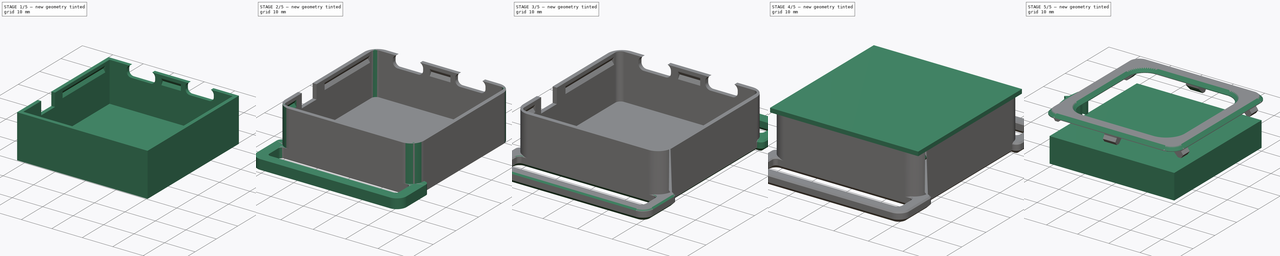
[diagram: build sequence overview — one tinted view per stage of 5, left to right]
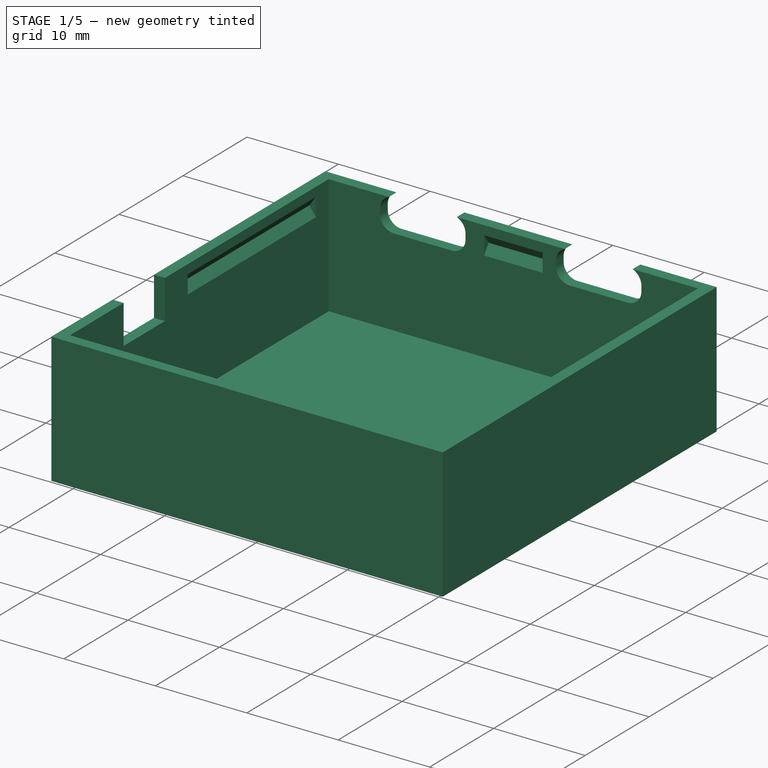
[diagram: stage 1 of 5 — iso view after this stage's code; geometry added in this stage tinted green]
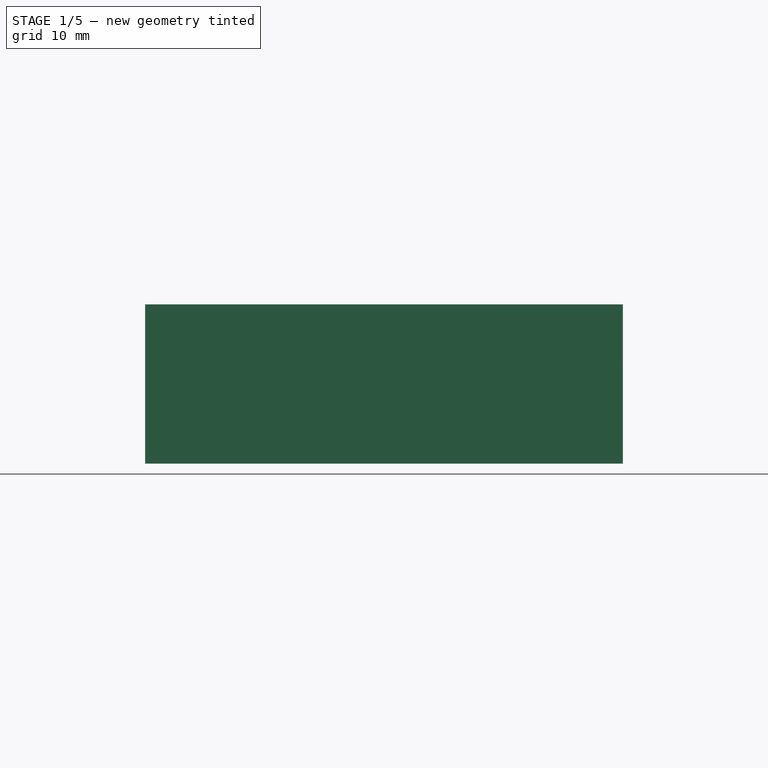
[diagram: stage 1 of 5 — front view after this stage's code; geometry added in this stage tinted green]
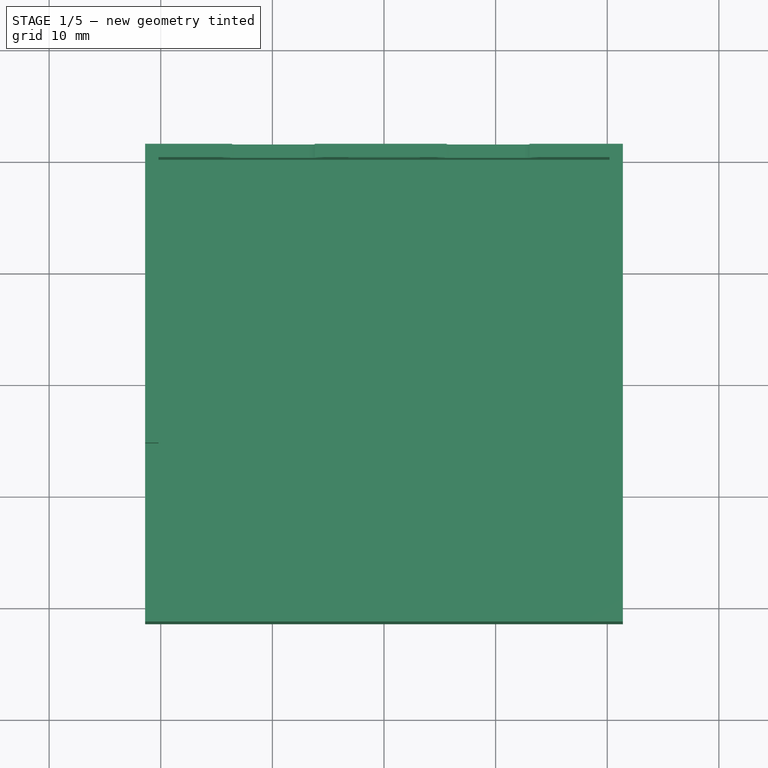
[diagram: stage 1 of 5 — top view after this stage's code; geometry added in this stage tinted green]
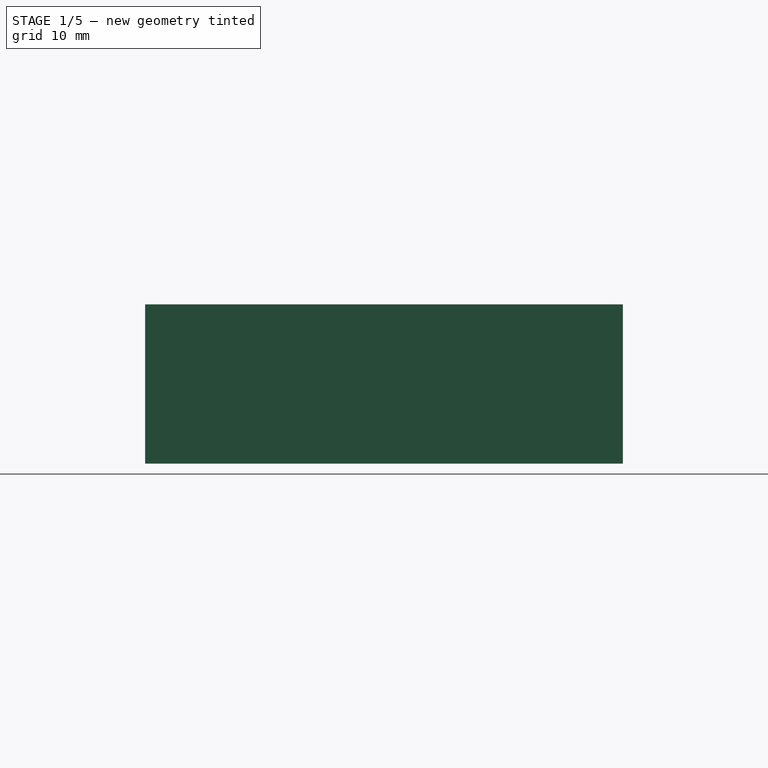
[diagram: stage 1 of 5 — right view after this stage's code; geometry added in this stage tinted green]
FCSTD DOCUMENT  (FreeCAD 2023.1231R38924 (Git))
Label: tiny-slime-case
License: All rights reserved
objects: Sketcher::SketchObject×19, PartDesign::Pad×10, PartDesign::Pocket×9, Part::Feature×8, App::Part×8, Part::SubShapeBinder×8, PartDesign::Fillet×7, PartDesign::Chamfer×6, PartDesign::Body×4, PartDesign::Mirrored×4, PartDesign::SubShapeBinder×3, App::Link×2, PartDesign::MultiTransform×1
note: 172 computed .brp shape members not serialized (recipe doc carries the construction recipe); baked Part::Feature solids carry a one-line shape summary decoded from their .brp

FEATURE [PartDesign::Body] Body  label="Battery"
  AutoGroupSolids = false
  ClaimAllChildren = false
  ExportMode = 0
  Group = -> [Sketch,Pad]
  InvalidShape = false
  Origin = -> Origin008
  Placement = pos=(0,0,1.2) rot=(0,0,1;0rad)
  Tip = -> Pad
  TreeRank = 49
  ValidateShape = false
  _ExportChildren = -> [Pad]
  _GroupVersion = 1
FEATURE [Part::SubShapeBinder] Import  label="Import(Pad)"
  BindCopyOnChange = 0
  BindMode = 0
  ClaimChildren = false
  Context = -> Body001 [Import.]
  EdgeTolerance = 1e-06
  FillStyle = 0
  Fuse = false
  InvalidShape = false
  MakeFace = false
  MergeEdges = true
  OffsetFill = false
  OffsetIntersection = false
  OffsetJoinType = 0
  OffsetOpenResult = false
  Outline = false
  PartialLoad = false
  Relative = true
  SplitEdges = false
  Support = -> [Body[Pad.]]
  TightBound = false
  TreeRank = 62
  ValidateShape = false
  _Version = 8
FEATURE [Sketcher::SketchObject] Sketch001
  ArcFitTolerance = 1e-06
  AttachmentSupport = -> [Import]
  ExternalBSplineMaxDegree = 5
  ExternalBSplineTolerance = 0.0001
  ExternalGeometry = -> [Import]
  FullyConstrained = true
  InternalTolerance = 1e-06
  InvalidShape = false
  MakeInternals = false
  MapMode = 5
  Placement = pos=(0,0,1.2) rot=(1,0,0;3.14159rad)
  Support = -> [Import]
  TreeRank = 63
  ValidateShape = false
  sketch-geometry (4):
    g0: LineSegment StartX=-21.4 StartY=21.4 StartZ=0 EndX=21.4 EndY=21.4 EndZ=0
    g1: LineSegment StartX=21.4 StartY=21.4 StartZ=0 EndX=21.4 EndY=-21.4 EndZ=0
    g2: LineSegment StartX=21.4 StartY=-21.4 StartZ=0 EndX=-21.4 EndY=-21.4 EndZ=0
    g3: LineSegment StartX=-21.4 StartY=-21.4 StartZ=0 EndX=-21.4 EndY=21.4 EndZ=0
  constraints (11):
    c: Coincident(g0,g1)
    c: Coincident(g1,g2)
    c: Coincident(g2,g3)
    c: Coincident(g3,g0)
    c: Horizontal(g0)
    c: Horizontal(g2)
    c: Vertical(g1)
    c: Vertical(g3)
    c: Symmetric(g1,g0,g-1)
    c: Equal(g1,g0)
    c: DistanceY(g-3,g0) = 1.4
FEATURE [PartDesign::Pad] Pad001
  AddSubType = 0
  AlongSketchNormal = false
  AutoTaperInnerAngle = true
  CheckUpToFaceLimits = true
  ClaimChildren = false
  Direction = (0,0,-1)
  Fit = 0
  FitJoin = 0
  InnerFit = 0
  InnerFitJoin = 0
  InvalidShape = false
  Length = 1.2
  Length2 = 10
  Linearize = true
  NewSolid = false
  Profile = -> Sketch001
  ReferenceAxis = -> Sketch001 [N_Axis]
  Suppress = false
  TaperInnerAngle = 0
  TaperInnerAngleRev = 0
  TreeRank = 64
  Type = 0
  ValidateShape = false
  _ProfileBasedVersion = 1
FEATURE [Sketcher::SketchObject] Sketch002
  ArcFitTolerance = 1e-06
  AttachmentSupport = -> [Pad001]
  ExternalBSplineMaxDegree = 5
  ExternalBSplineTolerance = 0.0001
  ExternalGeometry = -> [Pad001]
  FullyConstrained = true
  InternalTolerance = 1e-06
  InvalidShape = false
  MakeInternals = false
  MapMode = 5
  Placement = pos=(0,0,1.2) rot=(0,0,1;0rad)
  Support = -> [Pad001]
  TreeRank = 65
  ValidateShape = false
  sketch-geometry (4):
    g0: LineSegment StartX=-20.2 StartY=20.2 StartZ=0 EndX=20.2 EndY=20.2 EndZ=0
    g1: LineSegment StartX=20.2 StartY=20.2 StartZ=0 EndX=20.2 EndY=-20.2 EndZ=0
    g2: LineSegment StartX=20.2 StartY=-20.2 StartZ=0 EndX=-20.2 EndY=-20.2 EndZ=0
    g3: LineSegment StartX=-20.2 StartY=-20.2 StartZ=0 EndX=-20.2 EndY=20.2 EndZ=0
  constraints (11):
    c: Coincident(g0,g1)
    c: Coincident(g1,g2)
    c: Coincident(g2,g3)
    c: Coincident(g3,g0)
    c: Horizontal(g0)
    c: Horizontal(g2)
    c: Vertical(g1)
    c: Vertical(g3)
    c: Symmetric(g1,g0,g-1)
    c: Equal(g0,g3)
    c: DistanceY(g0,g-4) = 1.2
FEATURE [PartDesign::SubShapeBinder] Import001  label="Import001(COMPOUND)"
  BindCopyOnChange = 0
  BindMode = 0
  ClaimChildren = false
  Context = -> Body001 [Import001.]
  EdgeTolerance = 1e-06
  FillStyle = 0
  Fuse = false
  InvalidShape = false
  MakeFace = false
  MergeEdges = true
  OffsetFill = false
  OffsetIntersection = false
  OffsetJoinType = 0
  OffsetOpenResult = false
  Outline = false
  PartialLoad = false
  Relative = true
  SplitEdges = false
  Support = -> [Part007[Part.Compound.Face247]]
  TightBound = false
  TreeRank = 67
  ValidateShape = false
  _Version = 8
FEATURE [PartDesign::Pad] Pad002
  AddSubType = 0
  AlongSketchNormal = false
  AutoTaperInnerAngle = true
  BaseFeature = -> Pad001
  CheckUpToFaceLimits = true
  ClaimChildren = false
  Direction = (0,0,1)
  Fit = 0
  FitJoin = 0
  InnerFit = 0
  InnerFitJoin = 0
  InvalidShape = false
  Length = 10
  Length2 = 10
  Linearize = true
  NewSolid = false
  Offset = -0.1
  Profile = -> Sketch002
  ReferenceAxis = -> Sketch002 [N_Axis]
  Suppress = false
  TaperInnerAngle = 0
  TaperInnerAngleRev = 0
  TreeRank = 66
  Type = 3
  UpToFace = -> Import001
  ValidateShape = false
  _ProfileBasedVersion = 1
FEATURE [Part::SubShapeBinder] Import002  label="Import002(COMPOUND)"
  BindCopyOnChange = 0
  BindMode = 0
  ClaimChildren = false
  Context = -> Body001 [Import002.]
  EdgeTolerance = 1e-06
  FillStyle = 0
  Fuse = false
  InvalidShape = false
  MakeFace = false
  MergeEdges = true
  OffsetFill = false
  OffsetIntersection = false
  OffsetJoinType = 0
  OffsetOpenResult = false
  Outline = false
  PartialLoad = false
  Relative = true
  SplitEdges = false
  Support = -> [Part007[Part002.Compound001.]]
  TightBound = false
  TreeRank = 69
  ValidateShape = false
  _Version = 8
FEATURE [Part::SubShapeBinder] Import003  label="Import003(COMPOUND)"
  BindCopyOnChange = 0
  BindMode = 0
  ClaimChildren = false
  Context = -> Body001 [Import003.]
  EdgeTolerance = 1e-06
  FillStyle = 0
  Fuse = false
  InvalidShape = false
  MakeFace = false
  MergeEdges = true
  OffsetFill = false
  OffsetIntersection = false
  OffsetJoinType = 0
  OffsetOpenResult = false
  Outline = false
  PartialLoad = false
  Relative = true
  SplitEdges = false
  Support = -> [Part007[Part.Compound.]]
  TightBound = false
  TreeRank = 70
  ValidateShape = false
  _Version = 8
FEATURE [Sketcher::SketchObject] Sketch003
  ArcFitTolerance = 1e-06
  AttachmentSupport = -> [Pad002]
  ExternalBSplineMaxDegree = 5
  ExternalBSplineTolerance = 0.0001
  ExternalGeometry = -> [Import002,Import003]
  FullyConstrained = true
  InternalTolerance = 1e-06
  InvalidShape = false
  MakeInternals = false
  MapMode = 5
  Placement = pos=(0,21.4,0) rot=(0,0.707107,0.707107;3.14159rad)
  Support = -> [Pad002]
  TreeRank = 68
  ValidateShape = false
  sketch-geometry (22):
    g0: ArcOfCircle CenterX=6.7254 CenterY=12.8646 CenterZ=0 NormalX=0 NormalY=0 NormalZ=1 AngleXU=0 Radius=1.4954 StartAngle=1.5708 EndAngle=3.14159
    g1: LineSegment StartX=6.7254 StartY=14.36 StartZ=0 EndX=13.0746 EndY=14.36 EndZ=0
    g2: ArcOfCircle CenterX=13.0746 CenterY=12.8646 CenterZ=0 NormalX=0 NormalY=0 NormalZ=1 AngleXU=0 Radius=1.4954 StartAngle=0 EndAngle=1.5708
    g3: LineSegment StartX=14.57 StartY=12.8646 StartZ=0 EndX=14.57 EndY=12.2954 EndZ=0
    g4: ArcOfCircle CenterX=13.0746 CenterY=12.2954 CenterZ=0 NormalX=0 NormalY=0 NormalZ=1 AngleXU=0 Radius=1.4954 StartAngle=4.71239 EndAngle=6.28319
    g5: LineSegment StartX=13.0746 StartY=10.8 StartZ=0 EndX=6.7254 EndY=10.8 EndZ=0
    g6: ArcOfCircle CenterX=6.7254 CenterY=12.2954 CenterZ=0 NormalX=0 NormalY=0 NormalZ=1 AngleXU=0 Radius=1.4954 StartAngle=3.14159 EndAngle=4.71239
    g7: LineSegment StartX=5.23 StartY=12.2954 StartZ=0 EndX=5.23 EndY=12.8646 EndZ=0
    g8: GeomPoint [constr] X=5.23 Y=14.36 Z=0
    g9: GeomPoint [constr] X=14.57 Y=10.8 Z=0
    g10: ArcOfCircle CenterX=-12.508 CenterY=12.8646 CenterZ=0 NormalX=0 NormalY=0 NormalZ=1 AngleXU=0 Radius=1.4954 StartAngle=1.5708 EndAngle=3.14159
    g11: LineSegment StartX=-12.508 StartY=14.36 StartZ=0 EndX=-6.15878 EndY=14.36 EndZ=0
    g12: ArcOfCircle CenterX=-6.15878 CenterY=12.8646 CenterZ=0 NormalX=0 NormalY=0 NormalZ=1 AngleXU=0 Radius=1.4954 StartAngle=0 EndAngle=1.5708
    g13: LineSegment StartX=-4.66338 StartY=12.8646 StartZ=0 EndX=-4.66338 EndY=12.2954 EndZ=0
    g14: ArcOfCircle CenterX=-6.15878 CenterY=12.2954 CenterZ=0 NormalX=0 NormalY=0 NormalZ=1 AngleXU=0 Radius=1.4954 StartAngle=4.71239 EndAngle=6.28319
    g15: LineSegment StartX=-6.15878 StartY=10.8 StartZ=0 EndX=-12.508 EndY=10.8 EndZ=0
    g16: ArcOfCircle CenterX=-12.508 CenterY=12.2954 CenterZ=0 NormalX=0 NormalY=0 NormalZ=1 AngleXU=0 Radius=1.4954 StartAngle=3.14159 EndAngle=4.71239
    g17: LineSegment StartX=-14.0034 StartY=12.2954 StartZ=0 EndX=-14.0034 EndY=12.8646 EndZ=0
    g18: GeomPoint [constr] X=-14.0034 Y=14.36 Z=0
    g19: GeomPoint [constr] X=-4.66338 Y=10.8 Z=0
    g20: LineSegment [constr] StartX=-18.2334 StartY=10.9 StartZ=0 EndX=-12.508 EndY=12.2954 EndZ=0
    g21: LineSegment [constr] StartX=-6.15878 StartY=12.2954 StartZ=0 EndX=-0.433383 EndY=10.9 EndZ=0
  constraints (49):
    c: Tangent(g0,g1) = 1.5708
    c: Tangent(g1,g2) = 1.5708
    c: Tangent(g2,g3) = 1.5708
    c: Tangent(g3,g4) = 1.5708
    c: Tangent(g4,g5) = 1.5708
    c: Tangent(g5,g6) = 1.5708
    c: Tangent(g6,g7) = 1.5708
    c: Tangent(g7,g0) = 1.5708
    c: Horizontal(g1)
    c: Horizontal(g5)
    c: Vertical(g3)
    c: Vertical(g7)
    c: Equal(g4,g6)
    c: PointOnObject(g8,g1)
    c: PointOnObject(g8,g7)
    c: PointOnObject(g9,g3)
    c: PointOnObject(g9,g5)
    c: Coincident(g4,g-13)
    c: Coincident(g-11,g2)
    c: Coincident(g0,g-9)
    c: DistanceY(g-10,g0) = 0.2
    c: Tangent(g10,g11) = 1.5708
    c: Tangent(g11,g12) = 1.5708
    c: Tangent(g12,g13) = 1.5708
    c: Tangent(g13,g14) = 1.5708
    c: Tangent(g14,g15) = 1.5708
    c: Tangent(g15,g16) = 1.5708
    c: Tangent(g16,g17) = 1.5708
    c: Tangent(g17,g10) = 1.5708
    c: Horizontal(g11)
    c: Horizontal(g15)
    c: Vertical(g13)
    c: Vertical(g17)
    c: Equal(g10,g12)
    c: Equal(g12,g14)
    c: Equal(g14,g16)
    c: PointOnObject(g18,g11)
    c: PointOnObject(g18,g17)
    c: PointOnObject(g19,g13)
    c: PointOnObject(g19,g15)
    c: Equal(g12,g2)
    c: Equal(g13,g3)
    c: Equal(g1,g11)
    c: Horizontal(g14,g6)
    c: Coincident(g20,g16)
    c: Coincident(g21,g14)
    c: Coincident(g21,g-18)
    c: Equal(g21,g20)
    c: Coincident(g-19,g20)
FEATURE [Part::SubShapeBinder] Import004  label="Import004(COMPOUND)"
  BindCopyOnChange = 0
  BindMode = 0
  ClaimChildren = false
  Context = -> Body001 [Import004.]
  EdgeTolerance = 1e-06
  FillStyle = 0
  Fuse = false
  InvalidShape = false
  MakeFace = false
  MergeEdges = true
  OffsetFill = false
  OffsetIntersection = false
  OffsetJoinType = 0
  OffsetOpenResult = false
  Outline = false
  PartialLoad = false
  Relative = true
  SplitEdges = false
  Support = -> [Part007[Part004.Compound002.]]
  TightBound = false
  TreeRank = 71
  ValidateShape = false
  _Version = 8
FEATURE [PartDesign::Pocket] Pocket
  AddSubType = 1
  AlongSketchNormal = false
  AutoTaperInnerAngle = true
  BaseFeature = -> Pad002
  CheckUpToFaceLimits = true
  ClaimChildren = false
  Direction = (0,-1,2e-16)
  Fit = 0
  FitJoin = 0
  InnerFit = 0
  InnerFitJoin = 0
  InvalidShape = false
  Length = 5
  Length2 = 10
  Linearize = true
  NewSolid = false
  Profile = -> Sketch003
  ReferenceAxis = -> Sketch003 [N_Axis]
  Suppress = false
  TaperInnerAngle = 0
  TaperInnerAngleRev = 0
  TreeRank = 72
  Type = 2
  ValidateShape = false
  _ProfileBasedVersion = 1
  _Version = 1
FEATURE [Part::SubShapeBinder] Import005  label="Import005(SOLID)"
  BindCopyOnChange = 0
  BindMode = 0
  ClaimChildren = false
  Context = -> Body001 [Import005.]
  EdgeTolerance = 1e-06
  FillStyle = 0
  Fuse = false
  InvalidShape = false
  MakeFace = false
  MergeEdges = true
  OffsetFill = false
  OffsetIntersection = false
  OffsetJoinType = 0
  OffsetOpenResult = false
  Outline = false
  PartialLoad = false
  Relative = true
  SplitEdges = false
  Support = -> [Part007[Part006.Solid002.]]
  TightBound = false
  TreeRank = 74
  ValidateShape = false
  _Version = 8
FEATURE [Sketcher::SketchObject] Sketch004
  ArcFitTolerance = 1e-06
  AttachmentSupport = -> [Pocket]
  ExternalBSplineMaxDegree = 5
  ExternalBSplineTolerance = 0.0001
  ExternalGeometry = -> [Import005,Pocket]
  FullyConstrained = true
  InternalTolerance = 1e-06
  InvalidShape = false
  MakeInternals = false
  MapMode = 5
  Placement = pos=(0,-3.1e-15,14.26) rot=(0,0,1;0rad)
  Support = -> [Pocket]
  TreeRank = 73
  ValidateShape = false
  sketch-geometry (7):
    g0: LineSegment [constr] StartX=-18.2744 StartY=-7.3656 StartZ=0 EndX=-16.6844 EndY=-5.2456 EndZ=0
    g1: LineSegment [constr] StartX=-18.2744 StartY=-7.3656 StartZ=0 EndX=-18.2744 EndY=-9.8256 EndZ=0
    g2: LineSegment [constr] StartX=-18.2744 StartY=-9.8256 StartZ=0 EndX=-16.6844 EndY=-11.9456 EndZ=0
    g3: LineSegment StartX=-21.4 StartY=-5.3656 StartZ=0 EndX=-20.2 EndY=-5.3656 EndZ=0
    g4: LineSegment StartX=-20.2 StartY=-5.3656 StartZ=0 EndX=-20.2 EndY=-11.8256 EndZ=0
    g5: LineSegment StartX=-20.2 StartY=-11.8256 StartZ=0 EndX=-21.4 EndY=-11.8256 EndZ=0
    g6: LineSegment StartX=-21.4 StartY=-11.8256 StartZ=0 EndX=-21.4 EndY=-5.3656 EndZ=0
  constraints (19):
    c: Coincident(g0,g-5)
    c: Coincident(g0,g-3)
    c: Coincident(g1,g-5)
    c: Vertical(g1)
    c: Coincident(g2,g1)
    c: Coincident(g2,g-4)
    c: Equal(g2,g0)
    c: Coincident(g3,g4)
    c: Coincident(g4,g5)
    c: Coincident(g5,g6)
    c: Coincident(g6,g3)
    c: Horizontal(g3)
    c: Horizontal(g5)
    c: Vertical(g4)
    c: Vertical(g6)
    c: PointOnObject(g3,g-7)
    c: PointOnObject(g4,g-8)
    c: DistanceY(g-5,g3) = 2
    c: DistanceY(g4,g1) = 2
FEATURE [PartDesign::SubShapeBinder] Import006  label="Import006(tiny-slime PCB)"
  BindCopyOnChange = 0
  BindMode = 0
  ClaimChildren = false
  Context = -> Body001 [Import006.]
  EdgeTolerance = 1e-06
  FillStyle = 0
  Fuse = false
  InvalidShape = false
  MakeFace = false
  MergeEdges = true
  OffsetFill = false
  OffsetIntersection = false
  OffsetJoinType = 0
  OffsetOpenResult = false
  Outline = false
  PartialLoad = false
  Relative = true
  SplitEdges = false
  Support = -> [Part007[Solid003.Face5]]
  TightBound = false
  TreeRank = 76
  ValidateShape = false
  _Version = 8
FEATURE [PartDesign::Pocket] Pocket001
  AddSubType = 1
  AlongSketchNormal = false
  AutoTaperInnerAngle = true
  BaseFeature = -> Pocket
  CheckUpToFaceLimits = true
  ClaimChildren = false
  Direction = (0,2e-16,-1)
  Fit = 0
  FitJoin = 0
  InnerFit = 0
  InnerFitJoin = 0
  InvalidShape = false
  Length = 0
  Length2 = 10
  Linearize = true
  NewSolid = false
  Profile = -> Sketch004
  ReferenceAxis = -> Sketch004 [N_Axis]
  Suppress = false
  TaperInnerAngle = 0
  TaperInnerAngleRev = 0
  TreeRank = 75
  Type = 3
  UpToFace = -> Import006
  ValidateShape = false
  _ProfileBasedVersion = 1
  _Version = 1
FEATURE [PartDesign::Body] Body002  label="Switch"
  AutoGroupSolids = false
  ClaimAllChildren = false
  ExportMode = 0
  Group = -> [Import007,Sketch005,Import008,Pad003,Import009]
  InvalidShape = false
  Origin = -> Origin010
  Tip = -> Pad003
  TreeRank = 86
  ValidateShape = false
  _ExportChildren = -> [Import007,Import008,Pad003,Import009]
  _GroupVersion = 1
FEATURE [Sketcher::SketchObject] Sketch006
  ArcFitTolerance = 1e-06
  AttachmentOffset = pos=(0,0,2) rot=(0,0,1;0rad)
  AttachmentSupport = -> [Pocket001]
  ExternalBSplineMaxDegree = 5
  ExternalBSplineTolerance = 0.0001
  ExternalGeometry = -> [Pocket001]
  FullyConstrained = true
  InternalTolerance = 1e-06
  InvalidShape = false
  MakeInternals = false
  MapMode = 5
  Placement = pos=(0,18.2,4e-16) rot=(1,0,0;1.5708rad)
  Support = -> [Pocket001]
  TreeRank = 92
  ValidateShape = false
  sketch-geometry (3):
    g0: LineSegment StartX=20.2 StartY=13.26 StartZ=0 EndX=20.9002 EndY=12.26 EndZ=0
    g1: LineSegment StartX=20.9002 StartY=12.26 StartZ=0 EndX=20.2 EndY=11.26 EndZ=0
    g2: LineSegment StartX=20.2 StartY=11.26 StartZ=0 EndX=20.2 EndY=13.26 EndZ=0
  constraints (9):
    c: PointOnObject(g0,g-3)
    c: Coincident(g0,g1)
    c: PointOnObject(g1,g-3)
    c: Coincident(g1,g2)
    c: Coincident(g2,g0)
    c: Equal(g0,g1)
    c: DistanceY(g0,g-3) = 1
    c: DistanceY(g1,g0) = 2
    c: Angle(g0,g1) = 1.91986
FEATURE [PartDesign::Pocket] Pocket002
  AddSubType = 1
  AlongSketchNormal = false
  AutoTaperInnerAngle = true
  BaseFeature = -> Pocket001
  CheckUpToFaceLimits = true
  ClaimChildren = false
  Direction = (0,1,-2e-16)
  Fit = 0
  FitJoin = 0
  InnerFit = 0
  InnerFitJoin = 0
  InvalidShape = false
  Length = 0
  Length2 = 10
  Linearize = true
  NewSolid = false
  Offset = 2
  Profile = -> Sketch006
  ReferenceAxis = -> Sketch006 [N_Axis]
  Reversed = true
  Suppress = false
  TaperInnerAngle = 0
  TaperInnerAngleRev = 0
  TreeRank = 93
  Type = 3
  UpToFace = -> Pocket001 [Face16]
  ValidateShape = false
  _ProfileBasedVersion = 1
  _Version = 1
FEATURE [Sketcher::SketchObject] Sketch007
  ArcFitTolerance = 1e-06
  AttachmentOffset = pos=(0,0,17) rot=(0,0,1;0rad)
  AttachmentSupport = -> [Pocket002]
  ExternalBSplineMaxDegree = 5
  ExternalBSplineTolerance = 0.0001
  ExternalGeometry = -> [Pocket002]
  FullyConstrained = true
  InternalTolerance = 1e-06
  InvalidShape = false
  MakeInternals = false
  MapMode = 5
  Placement = pos=(-3.2,0,0) rot=(0.57735,0.57735,0.57735;2.0944rad)
  Support = -> [Pocket002]
  TreeRank = 94
  ValidateShape = false
  sketch-geometry (6):
    g0: LineSegment StartX=20.2 StartY=13.26 StartZ=0 EndX=20.9002 EndY=12.26 EndZ=0
    g1: LineSegment StartX=20.9002 StartY=12.26 StartZ=0 EndX=20.2 EndY=11.26 EndZ=0
    g2: LineSegment StartX=20.2 StartY=11.26 StartZ=0 EndX=20.2 EndY=13.26 EndZ=0
    g3: LineSegment StartX=-20.2 StartY=13.26 StartZ=0 EndX=-20.9002 EndY=12.26 EndZ=0
    g4: LineSegment StartX=-20.9002 StartY=12.26 StartZ=0 EndX=-20.2 EndY=11.26 EndZ=0
    g5: LineSegment StartX=-20.2 StartY=11.26 StartZ=0 EndX=-20.2 EndY=13.26 EndZ=0
  constraints (18):
    c: PointOnObject(g0,g-3)
    c: Coincident(g0,g1)
    c: PointOnObject(g1,g-3)
    c: Coincident(g1,g2)
    c: Coincident(g2,g0)
    c: Equal(g0,g1)
    c: Angle(g0,g1) = 1.91986
    c: DistanceY(g1,g0) = 2
    c: DistanceY(g0,g-3) = 1
    c: PointOnObject(g3,g-4)
    c: Coincident(g3,g4)
    c: PointOnObject(g4,g-4)
    c: Coincident(g4,g5)
    c: Coincident(g5,g3)
    c: Equal(g3,g4)
    c: DistanceY(g5,g5) = 2
    c: DistanceY(g3,g-4) = 1
    c: Angle(g4,g3) = 1.91986
FEATURE [PartDesign::Pocket] Pocket003
  AddSubType = 1
  AlongSketchNormal = false
  AutoTaperInnerAngle = true
  BaseFeature = -> Pocket002
  CheckUpToFaceLimits = true
  ClaimChildren = false
  Direction = (-1,0,0)
  Fit = 0
  FitJoin = 0
  InnerFit = 0
  InnerFitJoin = 0
  InvalidShape = false
  Length = 0
  Length2 = 10
  Linearize = true
  NewSolid = false
  Offset = 17
  Profile = -> Sketch007
  ReferenceAxis = -> Sketch007 [N_Axis]
  Reversed = true
  Suppress = false
  TaperInnerAngle = 0
  TaperInnerAngleRev = 0
  TreeRank = 95
  Type = 3
  UpToFace = -> Pocket002 [Face17]
  ValidateShape = false
  _ProfileBasedVersion = 1
  _Version = 1
FEATURE [Sketcher::SketchObject] Sketch008
  ArcFitTolerance = 1e-06
  AttachmentOffset = pos=(0,0,2) rot=(0,0,1;0rad)
  AttachmentSupport = -> [Pocket003]
  ExternalBSplineMaxDegree = 5
  ExternalBSplineTolerance = 0.0001
  ExternalGeometry = -> [Pocket003]
  FullyConstrained = true
  InternalTolerance = 1e-06
  InvalidShape = false
  MakeInternals = false
  MapMode = 5
  Placement = pos=(0,18.2,4e-16) rot=(1,0,0;1.5708rad)
  Support = -> [Pocket003]
  TreeRank = 96
  ValidateShape = false
  sketch-geometry (3):
    g0: LineSegment StartX=-20.2 StartY=13.26 StartZ=0 EndX=-20.9002 EndY=12.26 EndZ=0
    g1: LineSegment StartX=-20.9002 StartY=12.26 StartZ=0 EndX=-20.2 EndY=11.26 EndZ=0
    g2: LineSegment StartX=-20.2 StartY=11.26 StartZ=0 EndX=-20.2 EndY=13.26 EndZ=0
  constraints (9):
    c: PointOnObject(g0,g-3)
    c: Coincident(g0,g1)
    c: PointOnObject(g1,g-3)
    c: Coincident(g1,g2)
    c: Coincident(g2,g0)
    c: Equal(g0,g1)
    c: Angle(g1,g0) = 1.91986
    c: DistanceY(g0,g-3) = 1
    c: DistanceY(g2,g2) = 2
FEATURE [PartDesign::Pocket] Pocket004
  AddSubType = 1
  AlongSketchNormal = false
  AutoTaperInnerAngle = true
  BaseFeature = -> Pocket003
  CheckUpToFaceLimits = true
  ClaimChildren = false
  Direction = (0,1,-2e-16)
  Fit = 0
  FitJoin = 0
  InnerFit = 0
  InnerFitJoin = 0
  InvalidShape = false
  Length = 20
  Length2 = 10
  Linearize = true
  NewSolid = false
  Profile = -> Sketch008
  ReferenceAxis = -> Sketch008 [N_Axis]
  Reversed = true
  Suppress = false
  TaperInnerAngle = 0
  TaperInnerAngleRev = 0
  TreeRank = 97
  Type = 0
  ValidateShape = false
  _ProfileBasedVersion = 1
  _Version = 1
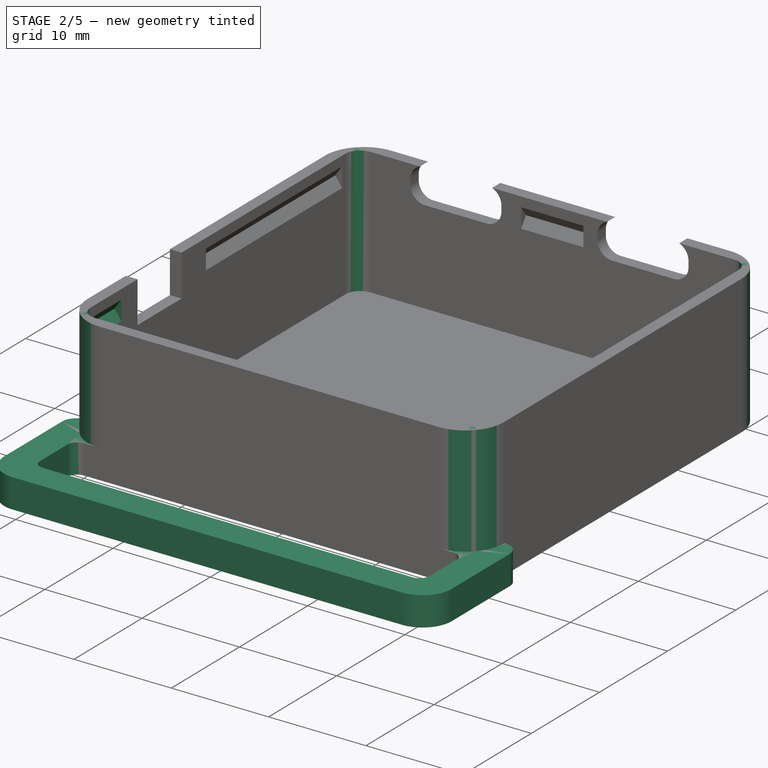
[diagram: stage 2 of 5 — iso view after this stage's code; geometry added in this stage tinted green]
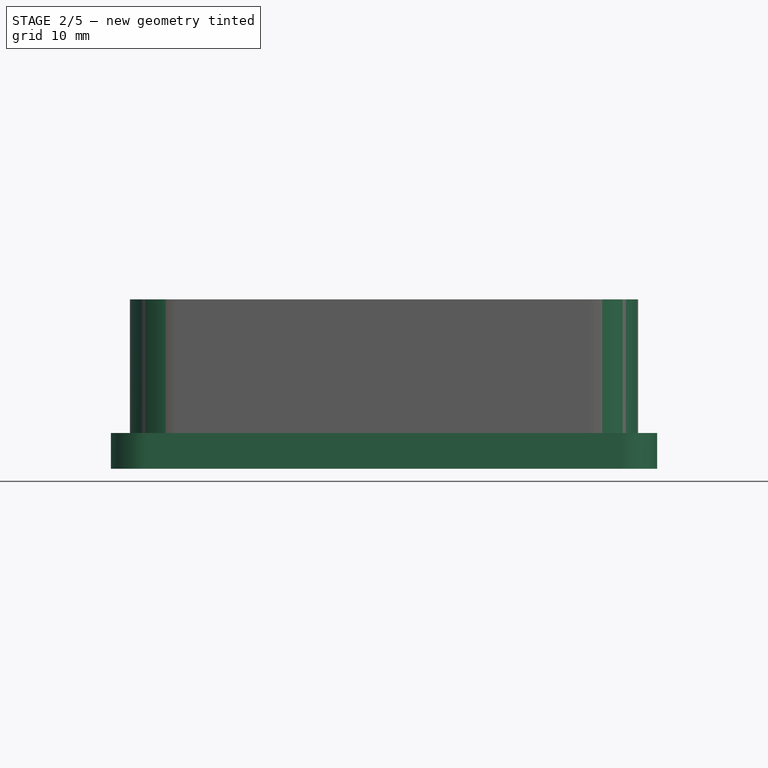
[diagram: stage 2 of 5 — front view after this stage's code; geometry added in this stage tinted green]
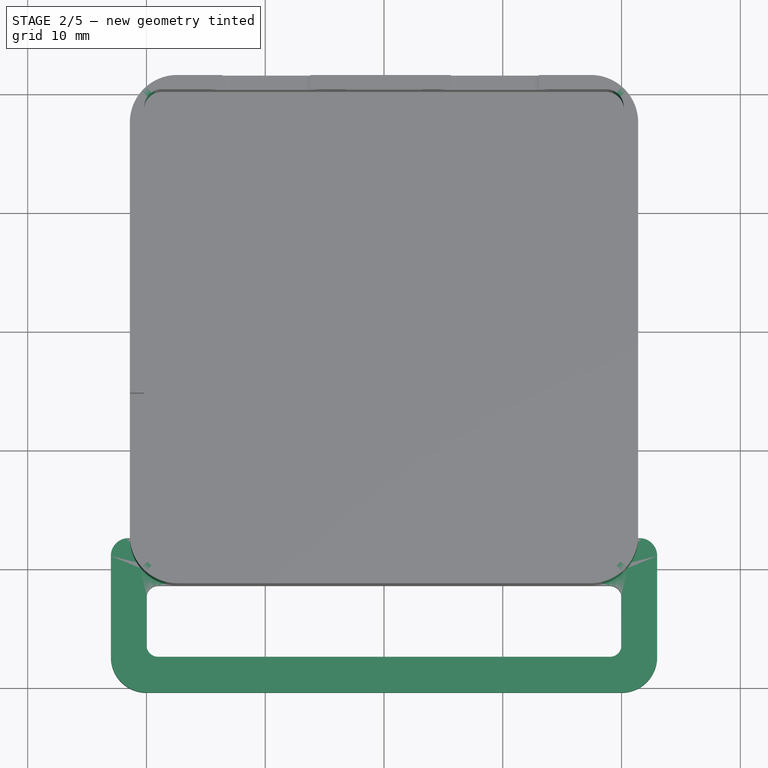
[diagram: stage 2 of 5 — top view after this stage's code; geometry added in this stage tinted green]
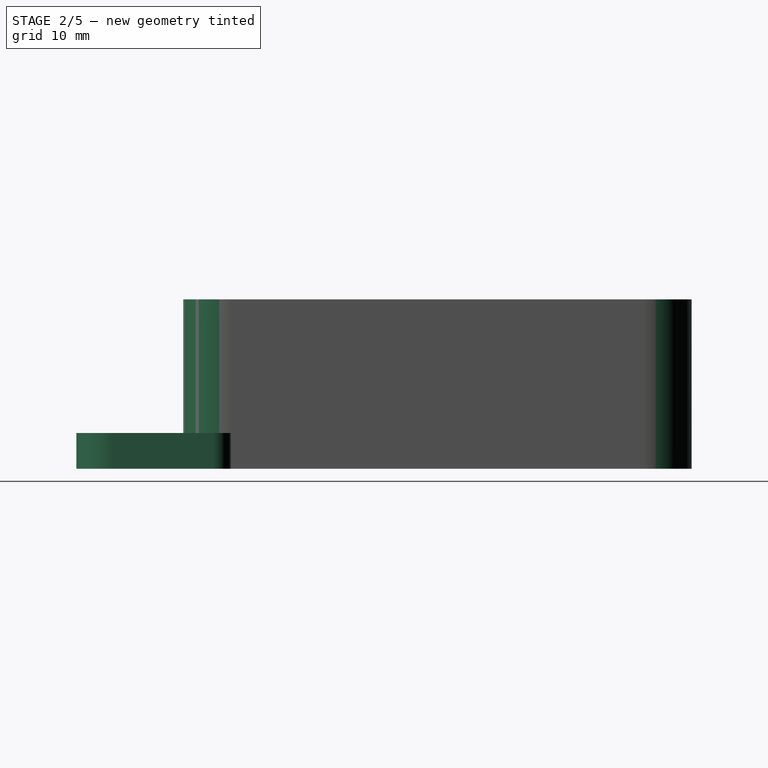
[diagram: stage 2 of 5 — right view after this stage's code; geometry added in this stage tinted green]
FEATURE [Sketcher::SketchObject] Sketch009
  ArcFitTolerance = 1e-06
  AttachmentOffset = pos=(0,0,2) rot=(0,0,1;0rad)
  AttachmentSupport = -> [Pocket004]
  ExternalBSplineMaxDegree = 5
  ExternalBSplineTolerance = 0.0001
  ExternalGeometry = -> [Pocket004]
  FullyConstrained = true
  InternalTolerance = 1e-06
  InvalidShape = false
  MakeInternals = false
  MapMode = 5
  Placement = pos=(0,-18.2,-4e-16) rot=(0,0.707107,0.707107;3.14159rad)
  Support = -> [Pocket004]
  TreeRank = 98
  ValidateShape = false
  sketch-geometry (3):
    g0: LineSegment StartX=20.2 StartY=13.26 StartZ=0 EndX=20.9002 EndY=12.26 EndZ=0
    g1: LineSegment StartX=20.9002 StartY=12.26 StartZ=0 EndX=20.2 EndY=11.26 EndZ=0
    g2: LineSegment StartX=20.2 StartY=11.26 StartZ=0 EndX=20.2 EndY=13.26 EndZ=0
  constraints (9):
    c: PointOnObject(g0,g-3)
    c: Coincident(g0,g1)
    c: PointOnObject(g1,g-3)
    c: Coincident(g1,g2)
    c: Coincident(g2,g0)
    c: Equal(g1,g0)
    c: DistanceY(g2,g2) = 2
    c: DistanceY(g0,g-3) = 1
    c: Angle(g0,g1) = 1.91986
FEATURE [PartDesign::Pocket] Pocket005
  AddSubType = 1
  AlongSketchNormal = false
  AutoTaperInnerAngle = true
  BaseFeature = -> Pocket004
  CheckUpToFaceLimits = true
  ClaimChildren = false
  Direction = (0,-1,2e-16)
  Fit = 0
  FitJoin = 0
  InnerFit = 0
  InnerFitJoin = 0
  InvalidShape = false
  Length = 4
  Length2 = 10
  Linearize = true
  NewSolid = false
  Profile = -> Sketch009
  ReferenceAxis = -> Sketch009 [N_Axis]
  Reversed = true
  Suppress = false
  TaperInnerAngle = 0
  TaperInnerAngleRev = 0
  TreeRank = 99
  Type = 0
  ValidateShape = false
  _ProfileBasedVersion = 1
  _Version = 1
FEATURE [PartDesign::Fillet] Fillet001
  AddSubType = 0
  Base = -> Pocket005 [Edge57,Edge58,Edge74,Edge68]
  BaseFeature = -> Pocket005
  InvalidShape = false
  NewSolid = false
  Radius = 1.5
  SupportTransform = false
  Suppress = false
  TreeRank = 126
  UseAllEdges = false
  ValidateShape = true
FEATURE [PartDesign::Fillet] Fillet002
  AddSubType = 0
  Base = -> Fillet001 [Edge40,Edge44,Edge56,Edge48]
  BaseFeature = -> Fillet001
  InvalidShape = false
  NewSolid = false
  Radius = 4
  SupportTransform = false
  Suppress = false
  TreeRank = 127
  UseAllEdges = false
  ValidateShape = true
FEATURE [Sketcher::SketchObject] Sketch015
  ArcFitTolerance = 1e-06
  AttachmentSupport = -> [Fillet002]
  ExternalBSplineMaxDegree = 5
  ExternalBSplineTolerance = 0.0001
  ExternalGeometry = -> [Fillet002]
  FullyConstrained = true
  InternalTolerance = 1e-06
  InvalidShape = false
  MakeInternals = false
  MapMode = 5
  Placement = pos=(0,0,0) rot=(1,0,0;3.14159rad)
  Support = -> [Fillet002]
  TreeRank = 128
  ValidateShape = false
  sketch-geometry (12):
    g0: LineSegment StartX=-20 StartY=21.4 StartZ=0 EndX=20 EndY=21.4 EndZ=0
    g1: LineSegment StartX=20 StartY=21.4 StartZ=0 EndX=20 EndY=27.4 EndZ=0
    g2: LineSegment StartX=20 StartY=27.4 StartZ=0 EndX=-20 EndY=27.4 EndZ=0
    g3: LineSegment StartX=-20 StartY=27.4 StartZ=0 EndX=-20 EndY=21.4 EndZ=0
    g4: LineSegment StartX=17.4 StartY=21.3 StartZ=0 EndX=-17.4 EndY=21.3 EndZ=0
    g5: ArcOfCircle CenterX=17.4 CenterY=17.4 CenterZ=0 NormalX=0 NormalY=0 NormalZ=1 AngleXU=0 Radius=3.9 StartAngle=0 EndAngle=1.5708
    g6: ArcOfCircle CenterX=-17.4 CenterY=17.4 CenterZ=0 NormalX=0 NormalY=0 NormalZ=1 AngleXU=0 Radius=3.9 StartAngle=1.5708 EndAngle=3.14159
    g7: LineSegment StartX=-21.3 StartY=17.4 StartZ=0 EndX=-23 EndY=17.4 EndZ=0
    g8: LineSegment StartX=-23 StartY=17.4 StartZ=0 EndX=-23 EndY=30.4 EndZ=0
    g9: LineSegment StartX=-23 StartY=30.4 StartZ=0 EndX=23 EndY=30.4 EndZ=0
    g10: LineSegment StartX=23 StartY=30.4 StartZ=0 EndX=23 EndY=17.4 EndZ=0
    g11: LineSegment StartX=21.3 StartY=17.4 StartZ=0 EndX=23 EndY=17.4 EndZ=0
  constraints (35):
    c: Coincident(g0,g1)
    c: Coincident(g1,g2)
    c: Coincident(g2,g3)
    c: Coincident(g3,g0)
    c: Horizontal(g0)
    c: Vertical(g1)
    c: Vertical(g3)
    c: DistanceY(g1,g1) = 6
    c: DistanceX(g2,g2) = 40
    c: Symmetric(g1,g2,g-2)
    c: PointOnObject(g-4,g0)
    c: Horizontal(g4)
    c: DistanceY(g4,g-4) = 0.1
    c: Vertical(g4,g-4)
    c: Vertical(g4,g-5)
    c: Coincident(g5,g-5)
    c: Coincident(g5,g4)
    c: Horizontal(g5,g-5)
    c: Coincident(g6,g-3)
    c: Coincident(g6,g4)
    c: Horizontal(g6,g-3)
    c: Coincident(g7,g6)
    c: Horizontal(g7)
    c: DistanceX(g7,g0) = 3
    c: Coincident(g8,g7)
    c: Vertical(g8)
    c: DistanceY(g2,g8) = 3
    c: Coincident(g9,g8)
    c: Horizontal(g9)
    c: DistanceX(g1,g9) = 3
    c: Coincident(g10,g9)
    c: Vertical(g10)
    c: Coincident(g11,g5)
    c: Coincident(g11,g10)
    c: Horizontal(g11)
FEATURE [PartDesign::Pad] Pad009
  AddSubType = 0
  AlongSketchNormal = false
  AutoTaperInnerAngle = true
  BaseFeature = -> Fillet002
  CheckUpToFaceLimits = true
  ClaimChildren = false
  Direction = (0,0,-1)
  Fit = 0
  FitJoin = 0
  InnerFit = 0
  InnerFitJoin = 0
  InvalidShape = false
  Length = 3
  Length2 = 10
  Linearize = true
  NewSolid = false
  Profile = -> Sketch015
  ReferenceAxis = -> Sketch015 [N_Axis]
  Refine = true
  Reversed = true
  Suppress = false
  TaperInnerAngle = 0
  TaperInnerAngleRev = 0
  TreeRank = 129
  Type = 0
  ValidateShape = true
  _ProfileBasedVersion = 1
FEATURE [PartDesign::Fillet] Fillet003
  AddSubType = 0
  Base = -> Pad009 [Edge122,Edge2]
  BaseFeature = -> Pad009
  InvalidShape = false
  NewSolid = false
  Radius = 1.5
  SupportTransform = false
  Suppress = false
  TreeRank = 130
  UseAllEdges = false
  ValidateShape = true
FEATURE [PartDesign::Fillet] Fillet004
  AddSubType = 0
  Base = -> Fillet003 [Edge77,Edge79,Edge78,Edge80]
  BaseFeature = -> Fillet003
  InvalidShape = false
  NewSolid = false
  Radius = 1
  SupportTransform = false
  Suppress = false
  TreeRank = 131
  UseAllEdges = false
  ValidateShape = true
FEATURE [PartDesign::Fillet] Fillet005
  AddSubType = 0
  Base = -> Fillet004 [Edge50,Edge54]
  BaseFeature = -> Fillet004
  InvalidShape = false
  NewSolid = false
  Radius = 3
  SupportTransform = false
  Suppress = false
  TreeRank = 132
  UseAllEdges = false
  ValidateShape = true
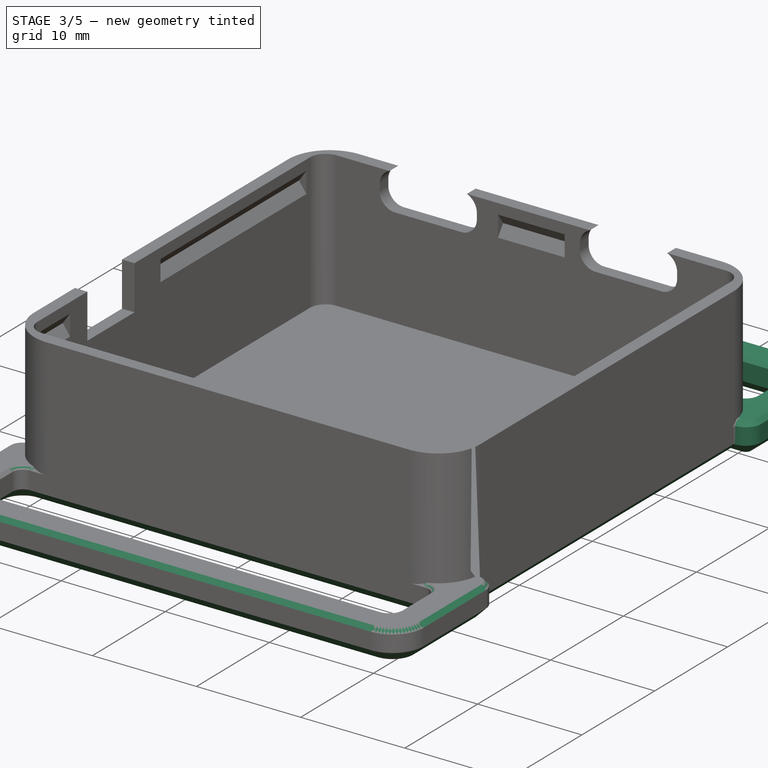
[diagram: stage 3 of 5 — iso view after this stage's code; geometry added in this stage tinted green]
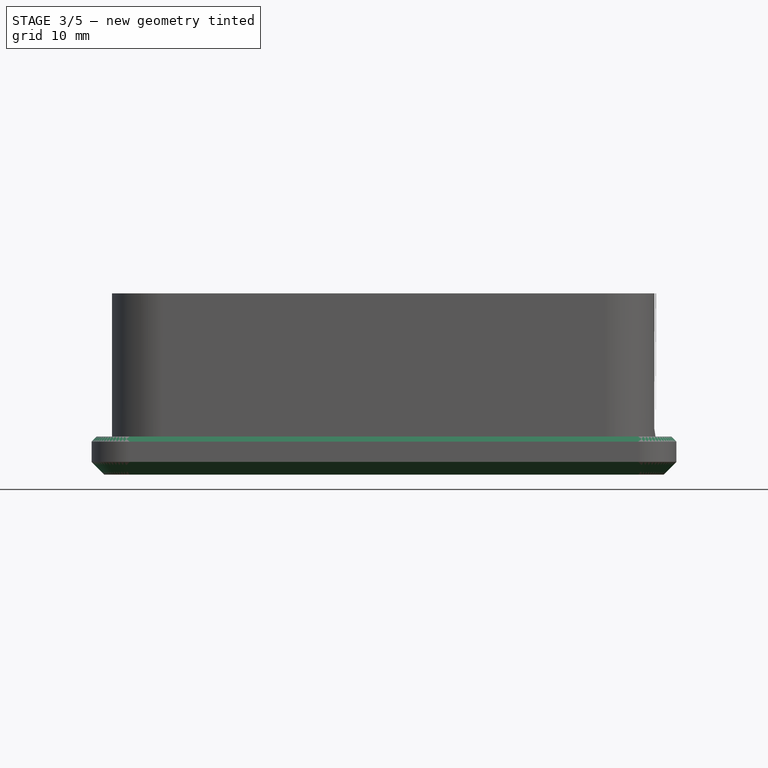
[diagram: stage 3 of 5 — front view after this stage's code; geometry added in this stage tinted green]
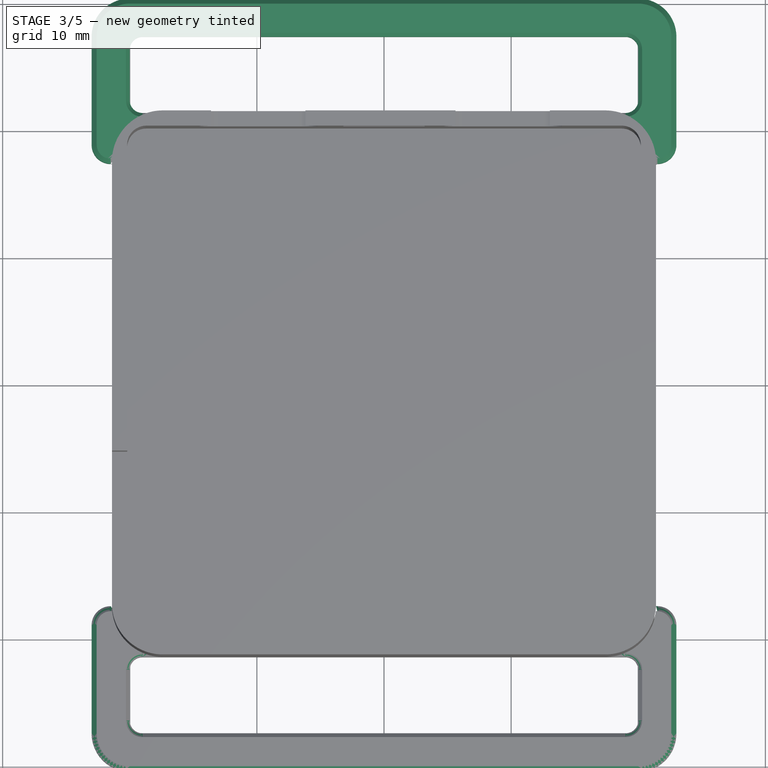
[diagram: stage 3 of 5 — top view after this stage's code; geometry added in this stage tinted green]
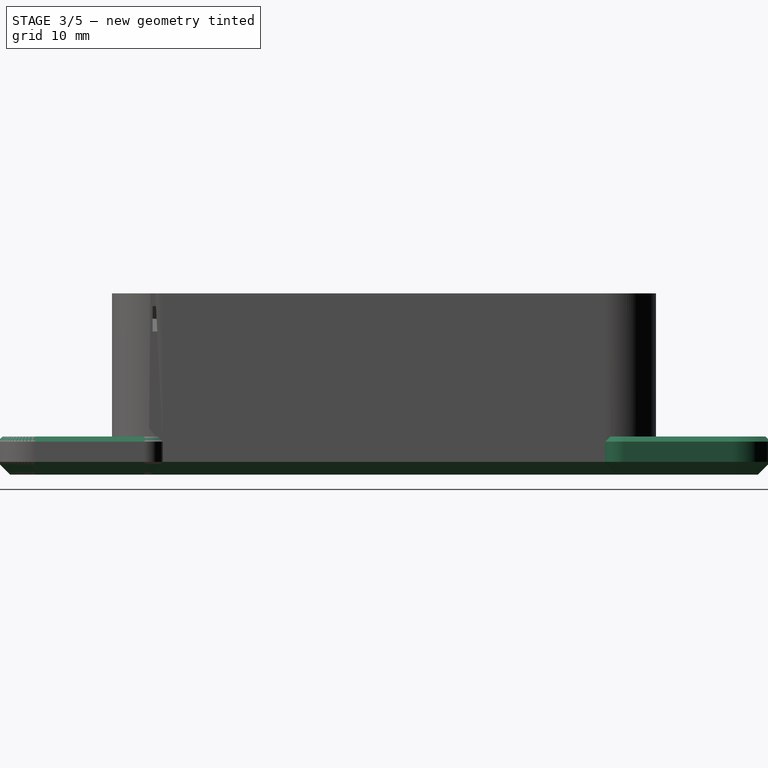
[diagram: stage 3 of 5 — right view after this stage's code; geometry added in this stage tinted green]
FEATURE [PartDesign::Mirrored] Mirrored003
  AddSubType = 0
  BaseFeature = -> Fillet005
  CopyShape = false
  InvalidShape = false
  MirrorPlane = -> Sketch015 [H_Axis]
  NewSolid = false
  OriginalSubs = -> [Pad009,Fillet003,Fillet004,Fillet005]
  Originals = -> [Pad009,Fillet003,Fillet004,Fillet005]
  ParallelTransform = true
  Refine = true
  SubTransform = true
  Suppress = false
  TreeRank = 133
  ValidateShape = true
  _Version = 3
FEATURE [PartDesign::Chamfer] Chamfer
  AddSubType = 0
  Angle = 45
  Base = -> Mirrored003 [Edge11,Edge73,Edge8,Edge21]
  BaseFeature = -> Mirrored003
  ChamferType = 0
  FlipDirection = false
  InvalidShape = false
  NewSolid = false
  Size = 1
  Size2 = 1
  SupportTransform = false
  Suppress = false
  TreeRank = 134
  UseAllEdges = false
  ValidateShape = true
FEATURE [PartDesign::Chamfer] Chamfer001
  AddSubType = 0
  Angle = 45
  Base = -> Chamfer [Edge130,Edge28]
  BaseFeature = -> Chamfer
  ChamferType = 0
  FlipDirection = false
  InvalidShape = false
  NewSolid = false
  Size = 0.3
  Size2 = 1
  SupportTransform = false
  Suppress = false
  TreeRank = 135
  UseAllEdges = false
  ValidateShape = true
FEATURE [PartDesign::Body] Body003  label="Top"
  AutoGroupSolids = false
  ClaimAllChildren = false
  ExportMode = 0
  Group = -> [Import010,Sketch010,Pad004,Sketch011,Pad005,Sketch012,Pad006,MultiTransform,Mirrored,Mirrored001,Sketch013,Pad007,Sketch014,Pad008,Mirrored002,Fillet,Fillet006,Sketch016,Pocket006,Chamfer003,Chamfer004]
  InvalidShape = false
  Origin = -> Origin011
  Tip = -> Chamfer004
  TreeRank = 109
  ValidateShape = false
  _ExportChildren = -> [Import010,Pad004,Pad005,Pad006,MultiTransform,Pad007,Pad008,Mirrored002,Fillet,Fillet006,Pocket006,Chamfer003,Chamfer004]
  _GroupVersion = 1
FEATURE [PartDesign::Chamfer] Chamfer005
  AddSubType = 0
  Angle = 45
  Base = -> Chamfer001 [Edge259,Edge15]
  BaseFeature = -> Chamfer001
  ChamferType = 0
  FlipDirection = false
  InvalidShape = false
  NewSolid = false
  Size = 0.4
  Size2 = 1
  SupportTransform = false
  Suppress = false
  TreeRank = 146
  UseAllEdges = false
  ValidateShape = true
FEATURE [PartDesign::Chamfer] Chamfer002
  AddSubType = 0
  Angle = 45
  Base = -> Chamfer005 [Edge167,Edge108]
  BaseFeature = -> Chamfer005
  ChamferType = 0
  FlipDirection = false
  InvalidShape = false
  NewSolid = false
  Size = 1
  Size2 = 1
  SupportTransform = false
  Suppress = false
  TreeRank = 136
  UseAllEdges = false
  ValidateShape = true
FEATURE [Sketcher::SketchObject] Sketch017
  ArcFitTolerance = 1e-06
  AttachmentSupport = -> [Chamfer002]
  ExternalBSplineMaxDegree = 5
  ExternalBSplineTolerance = 0.0001
  ExternalGeometry = -> [Chamfer002]
  FullyConstrained = true
  InternalTolerance = 1e-06
  InvalidShape = false
  MakeInternals = false
  MapMode = 5
  Placement = pos=(0,21.4,-2.4e-15) rot=(0,0.707107,0.707107;3.14159rad)
  Support = -> [Chamfer002]
  TreeRank = 142
  ValidateShape = false
  sketch-geometry (8):
    g0: LineSegment StartX=7.9 StartY=6.55 StartZ=0 EndX=9.9 EndY=9.8 EndZ=0
    g1: LineSegment StartX=9.9 StartY=9.8 StartZ=0 EndX=9.9 EndY=7.55 EndZ=0
    g2: LineSegment StartX=9.9 StartY=7.55 StartZ=0 EndX=11.4 EndY=7.55 EndZ=0
    g3: LineSegment StartX=11.4 StartY=7.55 StartZ=0 EndX=9.4 EndY=4.3 EndZ=0
    g4: LineSegment StartX=9.4 StartY=4.3 StartZ=0 EndX=9.4 EndY=6.55 EndZ=0
    g5: LineSegment StartX=9.4 StartY=6.55 StartZ=0 EndX=7.9 EndY=6.55 EndZ=0
    g6: LineSegment [constr] StartX=6.7254 StartY=10.8 StartZ=0 EndX=9.9 EndY=9.8 EndZ=0
    g7: LineSegment [constr] StartX=9.9 StartY=9.8 StartZ=0 EndX=13.0746 EndY=10.8 EndZ=0
  constraints (22):
    c: Coincident(g0,g1)
    c: Vertical(g1)
    c: Coincident(g1,g2)
    c: Horizontal(g2)
    c: Coincident(g2,g3)
    c: Coincident(g3,g4)
    c: Vertical(g4)
    c: Coincident(g4,g5)
    c: Horizontal(g5)
    c: Coincident(g0,g5)
    c: Parallel(g3,g0)
    c: Equal(g4,g1)
    c: DistanceX(g5,g5) = 1.5
    c: DistanceY(g3,g0) = 5.5
    c: DistanceX(g0,g2) = 3.5
    c: Coincident(g6,g-3)
    c: Coincident(g6,g0)
    c: Coincident(g7,g0)
    c: Coincident(g7,g-3)
    c: Equal(g7,g6)
    c: DistanceY(g0,g-3) = 1
    c: DistanceY(g4,g1) = 1
FEATURE [PartDesign::Pocket] Pocket007
  AddSubType = 1
  AlongSketchNormal = false
  AutoTaperInnerAngle = true
  BaseFeature = -> Chamfer002
  CheckUpToFaceLimits = true
  ClaimChildren = false
  Direction = (0,-1,2e-16)
  Fit = 0
  FitJoin = 0
  InnerFit = 0
  InnerFitJoin = 0
  InvalidShape = true
  Length = 0.6
  Length2 = 10
  Linearize = true
  NewSolid = false
  Profile = -> Sketch017
  ReferenceAxis = -> Sketch017 [N_Axis]
  Suppress = false
  TaperInnerAngle = 0
  TaperInnerAngleRev = 0
  TreeRank = 143
  Type = 0
  ValidateShape = true
  _ProfileBasedVersion = 1
  _Version = 1
FEATURE [Sketcher::SketchObject] Sketch018
  ArcFitTolerance = 1e-06
  AttachmentSupport = -> [Pocket007]
  ExternalBSplineMaxDegree = 5
  ExternalBSplineTolerance = 0.0001
  ExternalGeometry = -> [Pocket007]
  FullyConstrained = true
  InternalTolerance = 1e-06
  InvalidShape = false
  MakeInternals = false
  MapMode = 5
  Placement = pos=(-21.4,-8e-16,0) rot=(0.57735,-0.57735,-0.57735;2.0944rad)
  Support = -> [Pocket007]
  TreeRank = 144
  ValidateShape = false
  sketch-geometry (10):
    g0: Circle CenterX=14.8256 CenterY=7.05 CenterZ=0 NormalX=0 NormalY=0 NormalZ=1 AngleXU=0 Radius=1.5
    g1: LineSegment StartX=1.8656 StartY=8.55 StartZ=0 EndX=2.8656 EndY=8.55 EndZ=0
    g2: LineSegment StartX=2.8656 StartY=8.55 StartZ=0 EndX=2.8656 EndY=5.55 EndZ=0
    g3: LineSegment StartX=2.8656 StartY=5.55 StartZ=0 EndX=1.8656 EndY=5.55 EndZ=0
    g4: LineSegment StartX=1.8656 StartY=5.55 StartZ=0 EndX=1.8656 EndY=8.55 EndZ=0
    g5: GeomPoint [constr] X=2.3656 Y=7.05 Z=0
    g6: LineSegment [constr] StartX=2.3656 StartY=7.05 StartZ=0 EndX=5.3656 EndY=14.26 EndZ=0
    g7: LineSegment [constr] StartX=11.8256 StartY=14.26 StartZ=0 EndX=14.8256 EndY=7.05 EndZ=0
    g8: LineSegment [constr] StartX=-21.4 StartY=9.8 StartZ=0 EndX=2.3656 EndY=7.05 EndZ=0
    g9: LineSegment [constr] StartX=2.3656 StartY=7.05 StartZ=0 EndX=-21.4 EndY=4.3 EndZ=0
  constraints (24):
    c: Coincident(g1,g2)
    c: Coincident(g2,g3)
    c: Coincident(g3,g4)
    c: Coincident(g4,g1)
    c: Horizontal(g1)
    c: Horizontal(g3)
    c: Vertical(g2)
    c: Vertical(g4)
    c: Diameter(g0) = 3
    c: DistanceY(g2,g2) = 3
    c: DistanceX(g1,g1) = 1
    c: Symmetric(g1,g2,g5)
    c: Horizontal(g5,g0)
    c: Coincident(g6,g5)
    c: Coincident(g6,g-3)
    c: Coincident(g7,g-4)
    c: Coincident(g7,g0)
    c: Equal(g7,g6)
    c: DistanceX(g-4,g0) = 3
    c: Coincident(g8,g-5)
    c: Coincident(g8,g5)
    c: Coincident(g9,g5)
    c: Coincident(g9,g-6)
    c: Equal(g8,g9)
FEATURE [PartDesign::Pocket] Pocket008
  AddSubType = 1
  AlongSketchNormal = false
  AutoTaperInnerAngle = true
  BaseFeature = -> Pocket007
  CheckUpToFaceLimits = true
  ClaimChildren = false
  Direction = (1,0,0)
  Fit = 0
  FitJoin = 0
  InnerFit = 0
  InnerFitJoin = 0
  InvalidShape = true
  Length = 0.6
  Length2 = 10
  Linearize = true
  NewSolid = false
  Profile = -> Sketch018
  ReferenceAxis = -> Sketch018 [N_Axis]
  Suppress = false
  TaperInnerAngle = 0
  TaperInnerAngleRev = 0
  TreeRank = 145
  Type = 0
  ValidateShape = true
  _ProfileBasedVersion = 1
  _Version = 1
FEATURE [PartDesign::Body] Body001  label="Bottom"
  AutoGroupSolids = false
  ClaimAllChildren = false
  ExportMode = 0
  Group = -> [Import,Sketch001,Pad001,Sketch002,Pad002,Import001,Sketch003,Import002,Import003,Import004,Pocket,Sketch004,Import005,Pocket001,Import006,Sketch006,Pocket002,Sketch007,Pocket003,Sketch008,Pocket004,Sketch009,Pocket005,Fillet001,Fillet002,Sketch015,Pad009,Fillet003,Fillet004,Fillet005,Mirrored003,Chamfer,Chamfer001,Chamfer005,Chamfer002,Sketch017,Pocket007,Sketch018,Pocket008]
  InvalidShape = false
  Origin = -> Origin009
  Tip = -> Pocket008
  TreeRank = 61
  ValidateShape = false
  _ExportChildren = -> [Import,Pad001,Pad002,Import001,Import002,Import003,Import004,Pocket,Import005,Pocket001,Import006,Pocket002,Pocket003,Pocket004,Pocket005,Fillet001,Fillet002,Pad009,Fillet003,Fillet004,Fillet005,Mirrored003,Chamfer,Chamfer001,Chamfer005,Chamfer002,Pocket007,Pocket008]
  _GroupVersion = 1
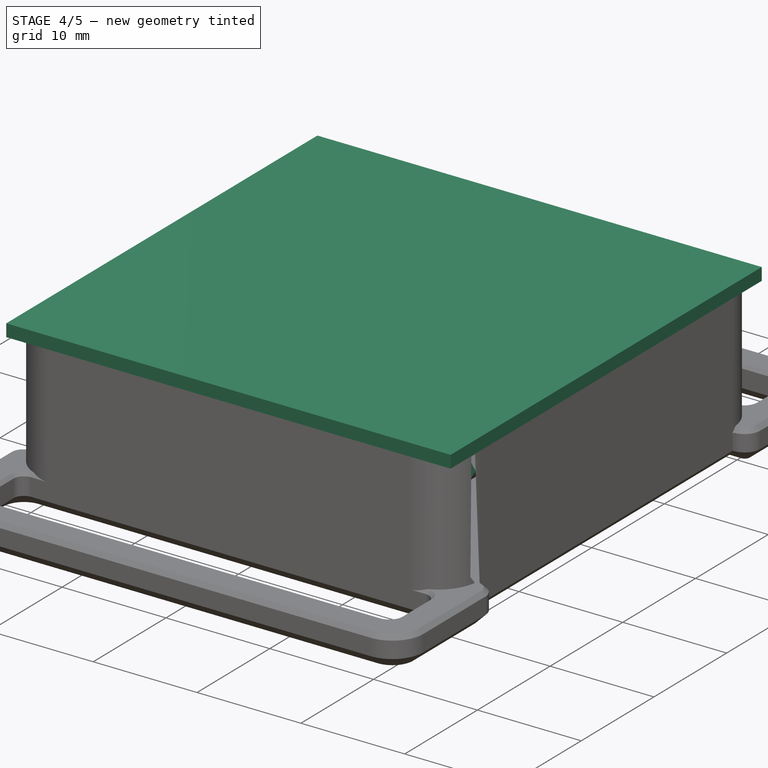
[diagram: stage 4 of 5 — iso view after this stage's code; geometry added in this stage tinted green]
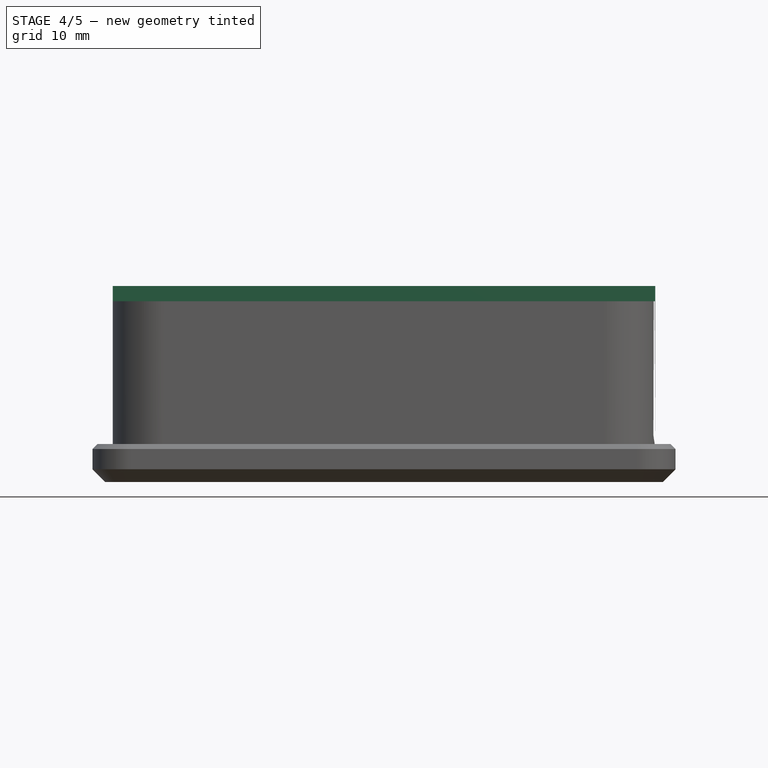
[diagram: stage 4 of 5 — front view after this stage's code; geometry added in this stage tinted green]
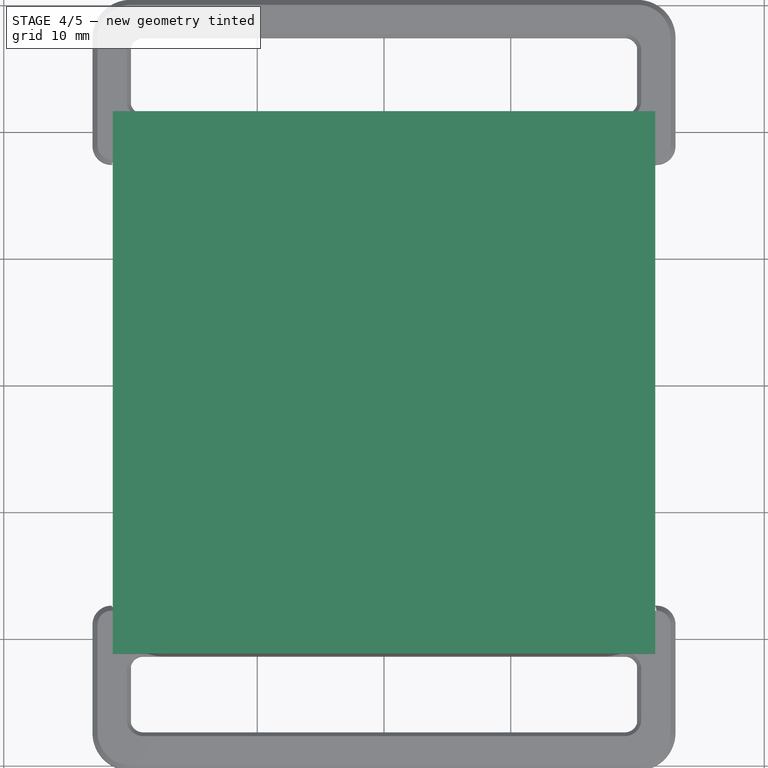
[diagram: stage 4 of 5 — top view after this stage's code; geometry added in this stage tinted green]
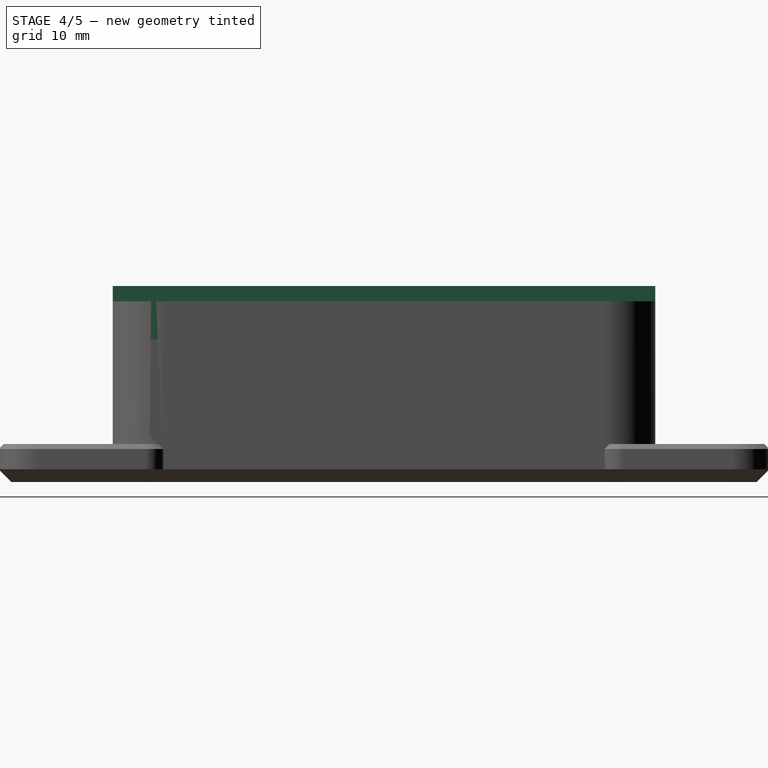
[diagram: stage 4 of 5 — right view after this stage's code; geometry added in this stage tinted green]
FEATURE [Part::SubShapeBinder] Import010  label="Import010(Pocket005)"
  BindCopyOnChange = 0
  BindMode = 0
  ClaimChildren = false
  Context = -> Body003 [Import010.]
  EdgeTolerance = 1e-06
  FillStyle = 0
  Fuse = false
  InvalidShape = false
  MakeFace = false
  MergeEdges = true
  OffsetFill = false
  OffsetIntersection = false
  OffsetJoinType = 0
  OffsetOpenResult = false
  Outline = false
  PartialLoad = false
  Relative = true
  SplitEdges = false
  Support = -> [Body001[Pocket005.]]
  TightBound = false
  TreeRank = 110
  ValidateShape = false
  _Version = 8
FEATURE [Sketcher::SketchObject] Sketch010
  ArcFitTolerance = 1e-06
  AttachmentSupport = -> [Import010]
  ExternalBSplineMaxDegree = 5
  ExternalBSplineTolerance = 0.0001
  ExternalGeometry = -> [Import010]
  FullyConstrained = true
  InternalTolerance = 1e-06
  InvalidShape = false
  MakeInternals = false
  MapMode = 5
  Placement = pos=(0,-3.1e-15,14.26) rot=(0,0,1;0rad)
  Support = -> [Import010]
  TreeRank = 111
  ValidateShape = false
  sketch-geometry (4):
    g0: LineSegment StartX=-21.4 StartY=21.4 StartZ=0 EndX=21.4 EndY=21.4 EndZ=0
    g1: LineSegment StartX=21.4 StartY=21.4 StartZ=0 EndX=21.4 EndY=-21.4 EndZ=0
    g2: LineSegment StartX=21.4 StartY=-21.4 StartZ=0 EndX=-21.4 EndY=-21.4 EndZ=0
    g3: LineSegment StartX=-21.4 StartY=-21.4 StartZ=0 EndX=-21.4 EndY=21.4 EndZ=0
  constraints (10):
    c: Coincident(g0,g1)
    c: Coincident(g1,g2)
    c: Coincident(g2,g3)
    c: Coincident(g3,g0)
    c: Horizontal(g0)
    c: Horizontal(g2)
    c: Vertical(g1)
    c: Vertical(g3)
    c: Coincident(g0,g-3)
    c: Coincident(g1,g-4)
FEATURE [PartDesign::Pad] Pad004
  AddSubType = 0
  AlongSketchNormal = false
  AutoTaperInnerAngle = true
  CheckUpToFaceLimits = true
  ClaimChildren = false
  Direction = (0,-2e-16,1)
  Fit = 0
  FitJoin = 0
  InnerFit = 0
  InnerFitJoin = 0
  InvalidShape = false
  Length = 1.2
  Length2 = 10
  Linearize = true
  NewSolid = false
  Profile = -> Sketch010
  ReferenceAxis = -> Sketch010 [N_Axis]
  Suppress = false
  TaperInnerAngle = 0
  TaperInnerAngleRev = 0
  TreeRank = 112
  Type = 0
  ValidateShape = false
  _ProfileBasedVersion = 1
FEATURE [Sketcher::SketchObject] Sketch011
  ArcFitTolerance = 1e-06
  AttachmentSupport = -> [Pad004]
  ExternalBSplineMaxDegree = 5
  ExternalBSplineTolerance = 0.0001
  ExternalGeometry = -> [Pad004,Import010]
  FullyConstrained = true
  InternalTolerance = 1e-06
  InvalidShape = false
  MakeInternals = false
  MapMode = 5
  Placement = pos=(0,-3.6e-15,14.26) rot=(1,0,0;3.14159rad)
  Support = -> [Pad004]
  TreeRank = 113
  ValidateShape = false
  sketch-geometry (18):
    g0: LineSegment StartX=-20.2 StartY=17.2 StartZ=0 EndX=-17.2 EndY=17.2 EndZ=0
    g1: LineSegment StartX=-17.2 StartY=17.2 StartZ=0 EndX=-17.2 EndY=14.2 EndZ=0
    g2: LineSegment StartX=-17.2 StartY=14.2 StartZ=0 EndX=-20.2 EndY=14.2 EndZ=0
    g3: LineSegment StartX=-20.2 StartY=14.2 StartZ=0 EndX=-20.2 EndY=17.2 EndZ=0
    g4: LineSegment StartX=20.2 StartY=17.2 StartZ=0 EndX=17.2 EndY=17.2 EndZ=0
    g5: LineSegment StartX=17.2 StartY=17.2 StartZ=0 EndX=17.2 EndY=14.2 EndZ=0
    g6: LineSegment StartX=17.2 StartY=14.2 StartZ=0 EndX=20.2 EndY=14.2 EndZ=0
    g7: LineSegment StartX=20.2 StartY=14.2 StartZ=0 EndX=20.2 EndY=17.2 EndZ=0
    g8: LineSegment StartX=20.2 StartY=-17.2 StartZ=0 EndX=17.2 EndY=-17.2 EndZ=0
    g9: LineSegment StartX=17.2 StartY=-17.2 StartZ=0 EndX=17.2 EndY=-14.2 EndZ=0
    g10: LineSegment StartX=17.2 StartY=-14.2 StartZ=0 EndX=20.2 EndY=-14.2 EndZ=0
    g11: LineSegment StartX=20.2 StartY=-14.2 StartZ=0 EndX=20.2 EndY=-17.2 EndZ=0
    g12: LineSegment StartX=-20.2 StartY=-17.2 StartZ=0 EndX=-17.2 EndY=-17.2 EndZ=0
    g13: LineSegment StartX=-17.2 StartY=-17.2 StartZ=0 EndX=-17.2 EndY=-14.2 EndZ=0
    g14: LineSegment StartX=-17.2 StartY=-14.2 StartZ=0 EndX=-20.2 EndY=-14.2 EndZ=0
    g15: LineSegment StartX=-20.2 StartY=-14.2 StartZ=0 EndX=-20.2 EndY=-17.2 EndZ=0
    g16: LineSegment [constr] StartX=-20.2 StartY=-20.2 StartZ=0 EndX=-17.2 EndY=-17.2 EndZ=0
    g17: LineSegment [constr] StartX=-20.2 StartY=20.2 StartZ=0 EndX=-17.2 EndY=17.2 EndZ=0
  constraints (52):
    c: Coincident(g0,g1)
    c: Coincident(g1,g2)
    c: Coincident(g2,g3)
    c: Coincident(g3,g0)
    c: Horizontal(g0)
    c: Horizontal(g2)
    c: Vertical(g1)
    c: Vertical(g3)
    c: PointOnObject(g0,g-5)
    c: Coincident(g4,g5)
    c: Coincident(g5,g6)
    c: Coincident(g6,g7)
    c: Coincident(g7,g4)
    c: Horizontal(g4)
    c: Horizontal(g6)
    c: Vertical(g5)
    c: Vertical(g7)
    c: PointOnObject(g4,g-6)
    c: Coincident(g8,g9)
    c: Coincident(g9,g10)
    c: Coincident(g10,g11)
    c: Coincident(g11,g8)
    c: Horizontal(g8)
    c: Horizontal(g10)
    c: Vertical(g9)
    c: Vertical(g11)
    c: Coincident(g12,g13)
    c: Coincident(g13,g14)
    c: Coincident(g14,g15)
    c: Coincident(g15,g12)
    c: Horizontal(g12)
    c: Horizontal(g14)
    c: Vertical(g13)
    c: Vertical(g15)
    c: PointOnObject(g12,g-7)
    c: PointOnObject(g8,g-6)
    c: Horizontal(g12,g8)
    c: Horizontal(g1,g5)
    c: Equal(g1,g5)
    c: Equal(g5,g9)
    c: Equal(g9,g13)
    c: Equal(g14,g10)
    c: Equal(g10,g4)
    c: Equal(g4,g0)
    c: Coincident(g16,g-7)
    c: Coincident(g16,g12)
    c: Coincident(g17,g-5)
    c: Coincident(g17,g0)
    c: Equal(g17,g16)
    c: DistanceY(g13,g13) = 3
    c: DistanceX(g14,g14) = 3
    c: DistanceY(g-7,g12) = 3
FEATURE [PartDesign::Pad] Pad005
  AddSubType = 0
  AlongSketchNormal = false
  AutoTaperInnerAngle = true
  BaseFeature = -> Pad004
  CheckUpToFaceLimits = true
  ClaimChildren = false
  Direction = (0,2e-16,-1)
  Fit = 0
  FitJoin = 0
  InnerFit = 0
  InnerFitJoin = 0
  InvalidShape = false
  Length = 3
  Length2 = 10
  Linearize = true
  NewSolid = false
  Profile = -> Sketch011
  ReferenceAxis = -> Sketch011 [N_Axis]
  Suppress = false
  TaperInnerAngle = 0
  TaperInnerAngleRev = 0
  TreeRank = 114
  Type = 0
  ValidateShape = false
  _ProfileBasedVersion = 1
FEATURE [Sketcher::SketchObject] Sketch012
  ArcFitTolerance = 1e-06
  AttachmentSupport = -> [Pad005]
  ExternalBSplineMaxDegree = 5
  ExternalBSplineTolerance = 0.0001
  ExternalGeometry = -> [Pad005]
  FullyConstrained = true
  InternalTolerance = 1e-06
  InvalidShape = false
  MakeInternals = false
  MapMode = 5
  Placement = pos=(0,17.2,4.3e-15) rot=(0,0.707107,0.707107;3.14159rad)
  Support = -> [Pad005]
  TreeRank = 115
  ValidateShape = false
  sketch-geometry (3):
    g0: LineSegment StartX=-20.2 StartY=11.26 StartZ=0 EndX=-20.9002 EndY=12.26 EndZ=0
    g1: LineSegment StartX=-20.9002 StartY=12.26 StartZ=0 EndX=-20.2 EndY=13.26 EndZ=0
    g2: LineSegment StartX=-20.2 StartY=13.26 StartZ=0 EndX=-20.2 EndY=11.26 EndZ=0
  constraints (8):
    c: Coincident(g-3,g0)
    c: Coincident(g0,g1)
    c: PointOnObject(g1,g-3)
    c: Coincident(g1,g2)
    c: Coincident(g2,g0)
    c: DistanceY(g2,g2) = 2
    c: Equal(g1,g0)
    c: Angle(g0,g1) = 1.91986
FEATURE [PartDesign::Pad] Pad006
  AddSubType = 0
  AlongSketchNormal = false
  AutoTaperInnerAngle = true
  BaseFeature = -> Pad005
  CheckUpToFaceLimits = true
  ClaimChildren = false
  Direction = (0,1,2e-16)
  Fit = 0
  FitJoin = 0
  InnerFit = 0
  InnerFitJoin = 0
  InvalidShape = false
  Length = 10
  Length2 = 10
  Linearize = true
  NewSolid = false
  Profile = -> Sketch012
  ReferenceAxis = -> Sketch012 [N_Axis]
  Reversed = true
  Suppress = false
  TaperInnerAngle = 0
  TaperInnerAngleRev = 0
  TreeRank = 116
  Type = 3
  UpToFace = -> Pad005 [Face13]
  ValidateShape = false
  _ProfileBasedVersion = 1
FEATURE [PartDesign::Mirrored] Mirrored
  AddSubType = 0
  CopyShape = false
  InvalidShape = false
  MirrorPlane = -> Sketch012 [V_Axis]
  NewSolid = false
  ParallelTransform = true
  SubTransform = true
  Suppress = false
  TreeRank = 118
  ValidateShape = false
  _Version = 3
FEATURE [PartDesign::Mirrored] Mirrored001
  AddSubType = 0
  CopyShape = false
  InvalidShape = false
  MirrorPlane = -> XZ_Plane003
  NewSolid = false
  ParallelTransform = true
  SubTransform = true
  Suppress = false
  TreeRank = 119
  ValidateShape = false
  _Version = 3
FEATURE [PartDesign::MultiTransform] MultiTransform
  AddSubType = 0
  BaseFeature = -> Pad006
  CopyShape = false
  InvalidShape = false
  NewSolid = false
  OriginalSubs = -> [Pad006]
  Originals = -> [Pad006]
  ParallelTransform = true
  SubTransform = true
  Suppress = false
  Transformations = -> [Mirrored,Mirrored001]
  TreeRank = 117
  ValidateShape = false
  _Version = 3
FEATURE [Sketcher::SketchObject] Sketch013
  ArcFitTolerance = 1e-06
  AttachmentSupport = -> [MultiTransform]
  ExternalBSplineMaxDegree = 5
  ExternalBSplineTolerance = 0.0001
  ExternalGeometry = -> [Import010]
  FullyConstrained = true
  InternalTolerance = 1e-06
  InvalidShape = false
  MakeInternals = false
  MapMode = 5
  Placement = pos=(0,-3.6e-15,14.26) rot=(1,0,0;3.14159rad)
  Support = -> [MultiTransform]
  TreeRank = 120
  ValidateShape = false
  sketch-geometry (10):
    g0: LineSegment StartX=-2.28331 StartY=-17.2 StartZ=0 EndX=1.71669 EndY=-17.2 EndZ=0
    g1: LineSegment StartX=1.71669 StartY=-17.2 StartZ=0 EndX=1.71669 EndY=-20.2 EndZ=0
    g2: LineSegment StartX=1.71669 StartY=-20.2 StartZ=0 EndX=-2.28331 EndY=-20.2 EndZ=0
    g3: LineSegment StartX=-2.28331 StartY=-20.2 StartZ=0 EndX=-2.28331 EndY=-17.2 EndZ=0
    g4: LineSegment StartX=-2.28331 StartY=20.2 StartZ=0 EndX=1.71669 EndY=20.2 EndZ=0
    g5: LineSegment StartX=1.71669 StartY=20.2 StartZ=0 EndX=1.71669 EndY=17.2 EndZ=0
    g6: LineSegment StartX=1.71669 StartY=17.2 StartZ=0 EndX=-2.28331 EndY=17.2 EndZ=0
    g7: LineSegment StartX=-2.28331 StartY=17.2 StartZ=0 EndX=-2.28331 EndY=20.2 EndZ=0
    g8: LineSegment [constr] StartX=-6.18774 StartY=-20.2 StartZ=0 EndX=-2.28331 EndY=-17.2 EndZ=0
    g9: LineSegment [constr] StartX=1.71669 StartY=-17.2 StartZ=0 EndX=5.62112 EndY=-20.2 EndZ=0
  constraints (28):
    c: Coincident(g0,g1)
    c: Coincident(g1,g2)
    c: Coincident(g2,g3)
    c: Coincident(g3,g0)
    c: Horizontal(g0)
    c: Horizontal(g2)
    c: Vertical(g1)
    c: Vertical(g3)
    c: Coincident(g4,g5)
    c: Coincident(g5,g6)
    c: Coincident(g6,g7)
    c: Coincident(g7,g4)
    c: Horizontal(g4)
    c: Horizontal(g6)
    c: Vertical(g5)
    c: Vertical(g7)
    c: PointOnObject(g2,g-4)
    c: PointOnObject(g4,g-3)
    c: Equal(g7,g3)
    c: Equal(g0,g6)
    c: DistanceX(g6,g6) = 4
    c: DistanceY(g7,g7) = 3
    c: Vertical(g0,g6)
    c: Coincident(g8,g-4)
    c: Coincident(g8,g0)
    c: Coincident(g9,g0)
    c: Coincident(g9,g-4)
    c: Equal(g9,g8)
FEATURE [PartDesign::Pad] Pad007
  AddSubType = 0
  AlongSketchNormal = false
  AutoTaperInnerAngle = true
  BaseFeature = -> MultiTransform
  CheckUpToFaceLimits = true
  ClaimChildren = false
  Direction = (0,2e-16,-1)
  Fit = 0
  FitJoin = 0
  InnerFit = 0
  InnerFitJoin = 0
  InvalidShape = false
  Length = 3
  Length2 = 10
  Linearize = true
  NewSolid = false
  Profile = -> Sketch013
  ReferenceAxis = -> Sketch013 [N_Axis]
  Suppress = false
  TaperInnerAngle = 0
  TaperInnerAngleRev = 0
  TreeRank = 121
  Type = 0
  ValidateShape = false
  _ProfileBasedVersion = 1
FEATURE [Sketcher::SketchObject] Sketch014
  ArcFitTolerance = 1e-06
  AttachmentSupport = -> [Pad007]
  ExternalBSplineMaxDegree = 5
  ExternalBSplineTolerance = 0.0001
  ExternalGeometry = -> [Pad007]
  FullyConstrained = true
  InternalTolerance = 1e-06
  InvalidShape = false
  MakeInternals = false
  MapMode = 5
  Placement = pos=(1.71669,0,0) rot=(0.57735,0.57735,0.57735;2.0944rad)
  Support = -> [Pad007]
  TreeRank = 122
  ValidateShape = false
  sketch-geometry (3):
    g0: LineSegment StartX=-20.2 StartY=11.26 StartZ=0 EndX=-20.9002 EndY=12.26 EndZ=0
    g1: LineSegment StartX=-20.9002 StartY=12.26 StartZ=0 EndX=-20.2 EndY=13.26 EndZ=0
    g2: LineSegment StartX=-20.2 StartY=13.26 StartZ=0 EndX=-20.2 EndY=11.26 EndZ=0
  constraints (8):
    c: Coincident(g-3,g0)
    c: Coincident(g0,g1)
    c: PointOnObject(g1,g-3)
    c: Coincident(g1,g2)
    c: Coincident(g2,g0)
    c: Equal(g0,g1)
    c: Angle(g0,g1) = 1.91986
    c: DistanceY(g2,g2) = 2
FEATURE [PartDesign::Pad] Pad008
  AddSubType = 0
  AlongSketchNormal = false
  AutoTaperInnerAngle = true
  BaseFeature = -> Pad007
  CheckUpToFaceLimits = true
  ClaimChildren = false
  Direction = (1,0,0)
  Fit = 0
  FitJoin = 0
  InnerFit = 0
  InnerFitJoin = 0
  InvalidShape = false
  Length = 10
  Length2 = 10
  Linearize = true
  NewSolid = false
  Profile = -> Sketch014
  ReferenceAxis = -> Sketch014 [N_Axis]
  Suppress = false
  TaperInnerAngle = 0
  TaperInnerAngleRev = 0
  TreeRank = 123
  Type = 3
  UpToFace = -> Pad007 [Face18]
  ValidateShape = false
  _ProfileBasedVersion = 1
FEATURE [PartDesign::Mirrored] Mirrored002
  AddSubType = 0
  BaseFeature = -> Pad008
  CopyShape = false
  InvalidShape = false
  MirrorPlane = -> XZ_Plane003
  NewSolid = false
  OriginalSubs = -> [Pad008]
  Originals = -> [Pad008]
  ParallelTransform = true
  SubTransform = true
  Suppress = false
  TreeRank = 124
  ValidateShape = false
  _Version = 3
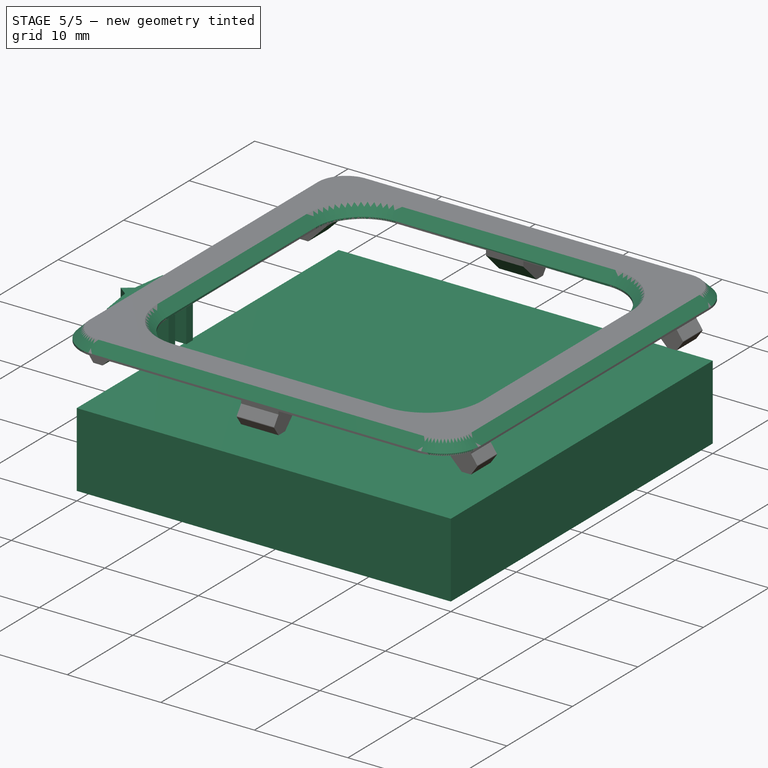
[diagram: stage 5 of 5 — iso view after this stage's code; geometry added in this stage tinted green]
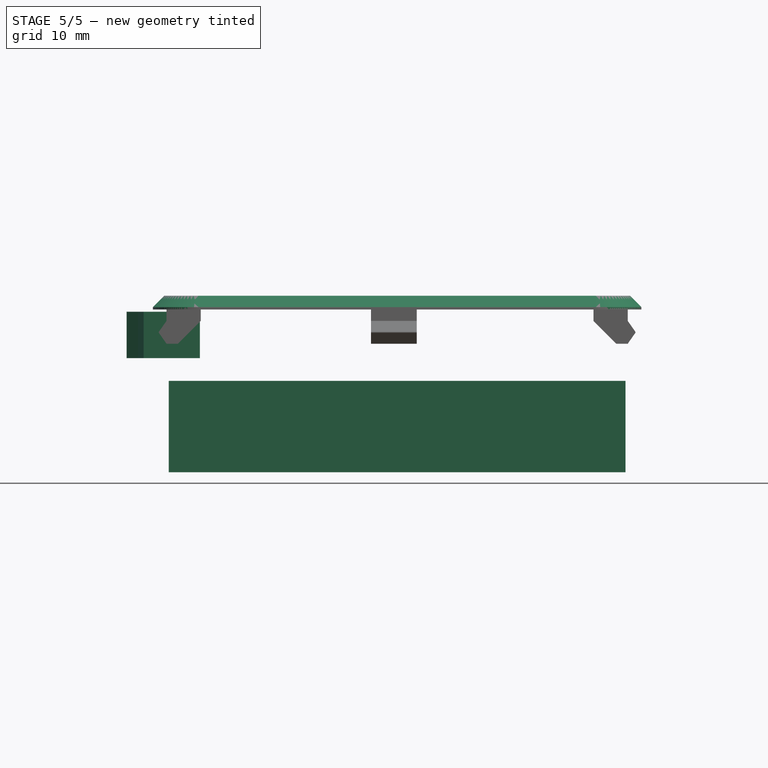
[diagram: stage 5 of 5 — front view after this stage's code; geometry added in this stage tinted green]
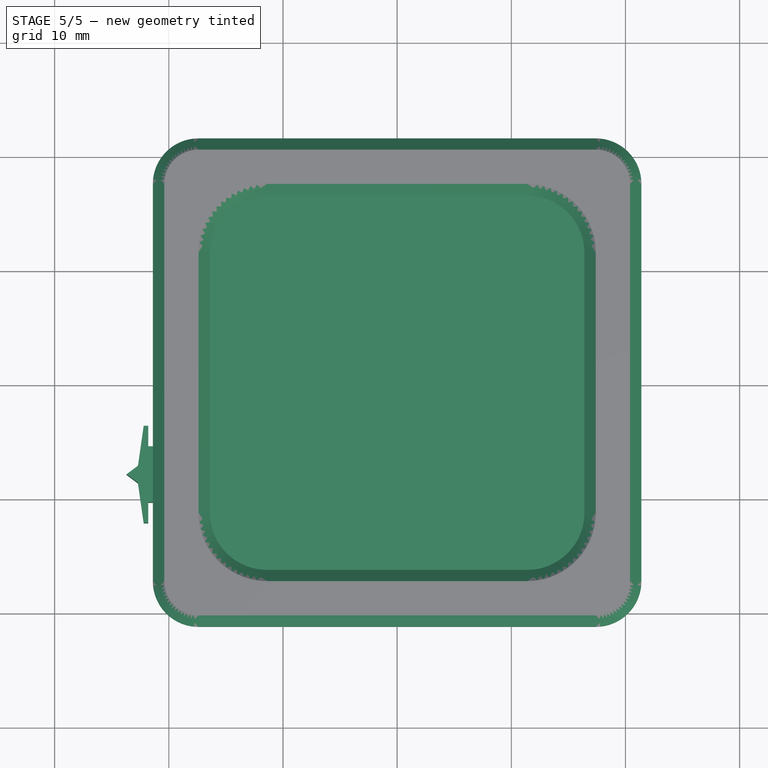
[diagram: stage 5 of 5 — top view after this stage's code; geometry added in this stage tinted green]
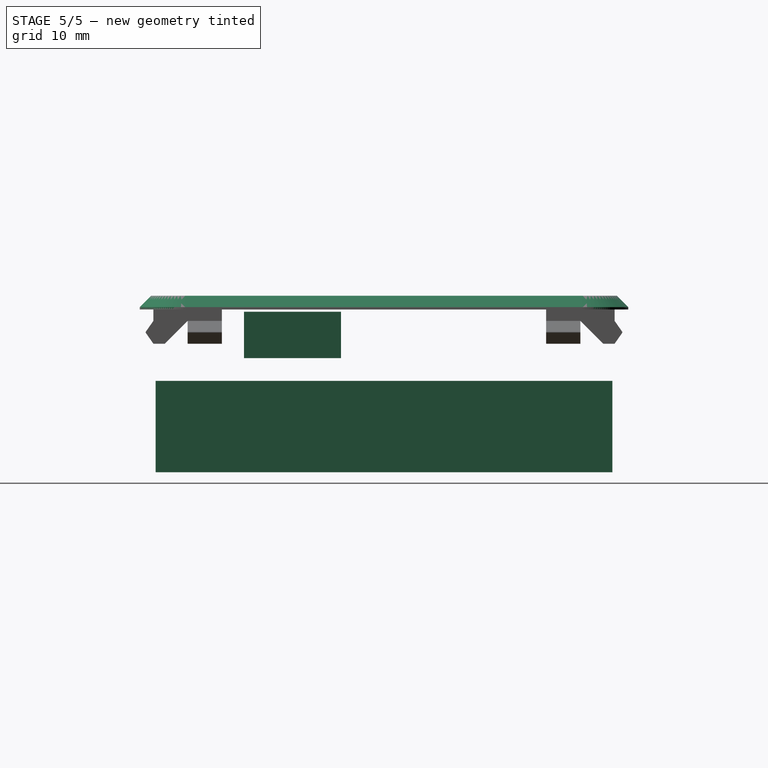
[diagram: stage 5 of 5 — right view after this stage's code; geometry added in this stage tinted green]
FEATURE [Part::Feature] Compound  label="COMPOUND"
  InvalidShape = false
  TreeRank = 14
  ValidateShape = false
  shape: bbox 17.4 x 23.83 x 4.26 mm, 775 faces, 35 solids (baked)
FEATURE [App::Part] Part  label="tp4056"
  ClaimAllChildren = false
  ExportMode = 1
  Group = -> [Compound]
  Origin = -> Origin
  Placement = pos=(-9.9,8.45,0.85) rot=(0,0,1;3.14159rad)
  TreeRank = 16
  _ExportChildren = -> [Compound]
  _GroupVersion = 1
FEATURE [Part::Feature] Solid  label="SOLID"
  InvalidShape = false
  TreeRank = 17
  ValidateShape = false
  shape: bbox 1.6 x 0.8 x 0.45 mm, 26 faces (baked)
FEATURE [App::Part] Part001  label="R_0603_1608Metric"
  ClaimAllChildren = false
  ExportMode = 1
  Group = -> [Solid]
  Origin = -> Origin001
  Placement = pos=(-2.1796,-13.7412,0.85) rot=(0,0,-1;1.5708rad)
  TreeRank = 19
  _ExportChildren = -> [Solid]
  _GroupVersion = 1
FEATURE [Part::Feature] Compound001  label="COMPOUND"
  InvalidShape = false
  TreeRank = 20
  ValidateShape = false
  shape: bbox 17.8 x 4.2 x 24 mm, 806 faces, 61 solids (baked)
FEATURE [App::Part] Part002  label="ESP32-C3 supermini v5"
  ClaimAllChildren = false
  ExportMode = 1
  Group = -> [Compound001]
  Origin = -> Origin002
  Placement = pos=(-10.5972,1.9965,-2.4) rot=(0,0.707107,0.707107;3.14159rad)
  TreeRank = 22
  _ExportChildren = -> [Compound001]
  _GroupVersion = 1
FEATURE [App::Link] Link  label="R_0603_1608Metric"
  AutoLinkLabel = true
  AutoPlacement = true
  LinkPlacement = pos=(-8.2756,-17.6914,0.85) rot=(0,0,1;1.5708rad)
  LinkedObject = -> Part001
  Placement = pos=(-8.2756,-17.6914,0.85) rot=(0,0,1;1.5708rad)
  SyncGroupVisibility = false
  TreeRank = 23
  _LinkVersion = 1
FEATURE [Part::Feature] Solid001  label="SOLID"
  InvalidShape = false
  TreeRank = 24
  ValidateShape = false
  shape: bbox 5 x 2.7 x 2.22 mm, 41 faces (baked)
FEATURE [App::Part] Part003  label="D_SMA"
  ClaimAllChildren = false
  ExportMode = 1
  Group = -> [Solid001]
  Origin = -> Origin003
  Placement = pos=(-7.7168,-13.792,0.85) rot=(0,0,1;0rad)
  TreeRank = 26
  _ExportChildren = -> [Solid001]
  _GroupVersion = 1
FEATURE [Part::Feature] Compound002  label="COMPOUND"
  InvalidShape = false
  TreeRank = 27
  ValidateShape = false
  shape: bbox 18 x 13 x 1.85 mm, 294 faces, 8 solids (baked)
FEATURE [App::Part] Part004  label="meia_lsm"
  ClaimAllChildren = false
  ExportMode = 1
  Group = -> [Compound002]
  Origin = -> Origin004
  Placement = pos=(9.6568,-11.8362,0.85) rot=(0,0,1;3.14159rad)
  TreeRank = 28
  _ExportChildren = -> [Compound002]
  _GroupVersion = 1
FEATURE [Part::Feature] Compound003  label="COMPOUND"
  InvalidShape = false
  TreeRank = 30
  ValidateShape = false
  shape: bbox 9.9 x 6.5 x 2.32 mm, 83 faces, 5 solids (baked)
FEATURE [App::Part] Part005  label="TO-252-2"
  ClaimAllChildren = false
  ExportMode = 1
  Group = -> [Compound003]
  Origin = -> Origin005
  Placement = pos=(-5.0136,-7.7408,0.85) rot=(0,0,1;0rad)
  TreeRank = 31
  _ExportChildren = -> [Compound003]
  _GroupVersion = 1
FEATURE [Part::Feature] Solid002  label="SOLID"
  InvalidShape = false
  TreeRank = 33
  ValidateShape = false
  shape: bbox 7.7 x 5 x 2 mm, 141 faces (baked)
FEATURE [App::Part] Part006  label="SW_SPDT_PCM12"
  ClaimAllChildren = false
  ExportMode = 1
  Group = -> [Solid002]
  Origin = -> Origin006
  Placement = pos=(-15.3444,-8.5956,0.85) rot=(0,0,-1;1.5708rad)
  TreeRank = 34
  _ExportChildren = -> [Solid002]
  _GroupVersion = 1
FEATURE [App::Link] Link001  label="R_0603_1608Metric"
  AutoLinkLabel = true
  AutoPlacement = true
  LinkPlacement = pos=(-5,-17.7036,0.85) rot=(0,0,1;1.5708rad)
  LinkedObject = -> Part001
  Placement = pos=(-5,-17.7036,0.85) rot=(0,0,1;1.5708rad)
  SyncGroupVisibility = false
  TreeRank = 36
  _LinkVersion = 1
FEATURE [Part::Feature] Solid003  label="tiny-slime PCB"
  InvalidShape = false
  TreeRank = 37
  ValidateShape = false
  shape: bbox 40 x 40 x 0.8 mm, 49 faces (baked)
FEATURE [App::Part] Part007  label="PCB"
  ClaimAllChildren = false
  ExportMode = 1
  Group = -> [Part,Part001,Part002,Link,Part003,Part004,Part005,Part006,Link001,Solid003]
  Origin = -> Origin007
  Placement = pos=(0,0,9.2) rot=(0,0,1;0rad)
  TreeRank = 38
  _ExportChildren = -> [Part,Part001,Part002,Link,Part003,Part004,Part005,Part006,Link001,Solid003]
  _GroupVersion = 1
FEATURE [Sketcher::SketchObject] Sketch
  ArcFitTolerance = 1e-06
  AttachmentSupport = -> [XY_Plane]
  ExternalBSplineMaxDegree = 5
  ExternalBSplineTolerance = 0.0001
  FullyConstrained = true
  InternalTolerance = 1e-06
  InvalidShape = false
  MakeInternals = false
  MapMode = 5
  Support = -> [XY_Plane]
  TreeRank = 50
  ValidateShape = false
  sketch-geometry (4):
    g0: LineSegment StartX=-20 StartY=20 StartZ=0 EndX=20 EndY=20 EndZ=0
    g1: LineSegment StartX=20 StartY=20 StartZ=0 EndX=20 EndY=-20 EndZ=0
    g2: LineSegment StartX=20 StartY=-20 StartZ=0 EndX=-20 EndY=-20 EndZ=0
    g3: LineSegment StartX=-20 StartY=-20 StartZ=0 EndX=-20 EndY=20 EndZ=0
  constraints (11):
    c: Coincident(g0,g1)
    c: Coincident(g1,g2)
    c: Coincident(g2,g3)
    c: Coincident(g3,g0)
    c: Horizontal(g0)
    c: Horizontal(g2)
    c: Vertical(g1)
    c: Vertical(g3)
    c: DistanceY(g1,g1) = 40
    c: Equal(g1,g2)
    c: Symmetric(g1,g0,g-1)
FEATURE [PartDesign::Pad] Pad
  AddSubType = 0
  AlongSketchNormal = false
  AutoTaperInnerAngle = true
  CheckUpToFaceLimits = true
  ClaimChildren = false
  Direction = (0,0,1)
  Fit = 0
  FitJoin = 0
  InnerFit = 0
  InnerFitJoin = 0
  InvalidShape = false
  Length = 8
  Length2 = 10
  Linearize = true
  NewSolid = false
  Profile = -> Sketch
  ReferenceAxis = -> Sketch [N_Axis]
  Suppress = false
  TaperInnerAngle = 0
  TaperInnerAngleRev = 0
  TreeRank = 51
  Type = 0
  ValidateShape = false
  _ProfileBasedVersion = 1
FEATURE [Part::SubShapeBinder] Import007  label="Import007(Pocket001)"
  BindCopyOnChange = 0
  BindMode = 0
  ClaimChildren = false
  Context = -> Body002 [Import007.]
  EdgeTolerance = 1e-06
  FillStyle = 0
  Fuse = false
  InvalidShape = false
  MakeFace = false
  MergeEdges = true
  OffsetFill = false
  OffsetIntersection = false
  OffsetJoinType = 0
  OffsetOpenResult = false
  Outline = false
  PartialLoad = false
  Relative = true
  SplitEdges = false
  Support = -> [Body001[Pocket001.]]
  TightBound = false
  TreeRank = 87
  ValidateShape = false
  _Version = 8
FEATURE [Part::SubShapeBinder] Import008  label="Import008(SOLID)"
  BindCopyOnChange = 0
  BindMode = 0
  ClaimChildren = false
  Context = -> Body002 [Import008.]
  EdgeTolerance = 1e-06
  FillStyle = 0
  Fuse = false
  InvalidShape = false
  MakeFace = false
  MergeEdges = true
  OffsetFill = false
  OffsetIntersection = false
  OffsetJoinType = 0
  OffsetOpenResult = false
  Outline = false
  PartialLoad = false
  Relative = true
  SplitEdges = false
  Support = -> [Part007[Part006.Solid002.]]
  TightBound = false
  TreeRank = 89
  ValidateShape = false
  _Version = 8
FEATURE [Sketcher::SketchObject] Sketch005
  ArcFitTolerance = 1e-06
  AttachmentSupport = -> [Import007]
  ExternalBSplineMaxDegree = 5
  ExternalBSplineTolerance = 0.0001
  ExternalGeometry = -> [Import007,Import008]
  FullyConstrained = true
  InternalTolerance = 1e-06
  InvalidShape = false
  MakeInternals = false
  MapMode = 5
  Placement = pos=(0,0,10) rot=(0,0,1;0rad)
  Support = -> [Import007]
  TreeRank = 88
  ValidateShape = false
  sketch-geometry (23):
    g0: LineSegment StartX=-21.8 StartY=-3.7656 StartZ=0 EndX=-21.8 EndY=-5.5656 EndZ=0
    g1: LineSegment StartX=-21.8 StartY=-5.5656 StartZ=0 EndX=-19.8 EndY=-5.5656 EndZ=0
    g2: LineSegment StartX=-19.8 StartY=-5.5656 StartZ=0 EndX=-19.8 EndY=-3.7656 EndZ=0
    g3: LineSegment StartX=-19.8 StartY=-3.7656 StartZ=0 EndX=-18.9744 EndY=-3.7656 EndZ=0
    g4: LineSegment StartX=-18.9744 StartY=-3.7656 StartZ=0 EndX=-18.9744 EndY=-6.1656 EndZ=0
    g5: LineSegment StartX=-18.9744 StartY=-6.1656 StartZ=0 EndX=-17.2744 EndY=-6.1656 EndZ=0
    g6: LineSegment StartX=-17.2744 StartY=-6.1656 StartZ=0 EndX=-17.2744 EndY=-7.1656 EndZ=0
    g7: LineSegment StartX=-17.2744 StartY=-7.1656 StartZ=0 EndX=-18.9744 EndY=-7.1656 EndZ=0
    g8: LineSegment StartX=-18.9744 StartY=-7.1656 StartZ=0 EndX=-18.9744 EndY=-8.8656 EndZ=0
    g9: LineSegment StartX=-18.9744 StartY=-8.8656 StartZ=0 EndX=-17.2744 EndY=-8.8656 EndZ=0
    g10: LineSegment StartX=-17.2744 StartY=-8.8656 StartZ=0 EndX=-17.2744 EndY=-9.8656 EndZ=0
    g11: LineSegment StartX=-17.2744 StartY=-9.8656 StartZ=0 EndX=-18.9744 EndY=-9.8656 EndZ=0
    g12: LineSegment StartX=-18.9744 StartY=-9.8656 StartZ=0 EndX=-18.9744 EndY=-12.2656 EndZ=0
    g13: LineSegment StartX=-18.9744 StartY=-12.2656 StartZ=0 EndX=-19.8 EndY=-12.2656 EndZ=0
    g14: LineSegment StartX=-19.8 StartY=-12.2656 StartZ=0 EndX=-19.8 EndY=-10.4656 EndZ=0
    g15: LineSegment StartX=-19.8 StartY=-10.4656 StartZ=0 EndX=-21.8 EndY=-10.4656 EndZ=0
    g16: LineSegment StartX=-21.8 StartY=-10.4656 StartZ=0 EndX=-21.8 EndY=-12.2656 EndZ=0
    g17: LineSegment StartX=-21.8 StartY=-3.7656 StartZ=0 EndX=-22.2 EndY=-3.7656 EndZ=0
    g18: LineSegment StartX=-22.2 StartY=-12.2656 StartZ=0 EndX=-21.8 EndY=-12.2656 EndZ=0
    g19: LineSegment StartX=-22.2 StartY=-3.7656 StartZ=0 EndX=-22.7 EndY=-7.2656 EndZ=0
    g20: LineSegment StartX=-22.7 StartY=-7.2656 StartZ=0 EndX=-23.7 EndY=-8.0156 EndZ=0
    g21: LineSegment StartX=-23.7 StartY=-8.0156 StartZ=0 EndX=-22.7 EndY=-8.7656 EndZ=0
    g22: LineSegment StartX=-22.7 StartY=-8.7656 StartZ=0 EndX=-22.2 EndY=-12.2656 EndZ=0
  constraints (69):
    c: Vertical(g0)
    c: Coincident(g0,g1)
    c: Horizontal(g1)
    c: Coincident(g1,g2)
    c: Vertical(g2)
    c: Coincident(g2,g3)
    c: Horizontal(g3)
    c: Coincident(g3,g4)
    c: Vertical(g4)
    c: Coincident(g4,g5)
    c: Horizontal(g5)
    c: Coincident(g5,g6)
    c: Vertical(g6)
    c: Coincident(g6,g7)
    c: Horizontal(g7)
    c: Coincident(g7,g8)
    c: Vertical(g8)
    c: Coincident(g8,g9)
    c: Horizontal(g9)
    c: Coincident(g9,g10)
    c: Vertical(g10)
    c: Coincident(g10,g11)
    c: Horizontal(g11)
    c: Coincident(g11,g12)
    c: Vertical(g12)
    c: Coincident(g12,g13)
    c: Horizontal(g13)
    c: Coincident(g13,g14)
    c: Vertical(g14)
    c: Coincident(g14,g15)
    c: Horizontal(g15)
    c: Coincident(g15,g16)
    c: Vertical(g16)
    c: Horizontal(g16,g13)
    c: Horizontal(g0,g2)
    c: Equal(g16,g0)
    c: Equal(g1,g15)
    c: Vertical(g4,g7)
    c: Vertical(g8,g11)
    c: Equal(g9,g7)
    c: Equal(g6,g10)
    c: DistanceY(g10,g10) = 1
    c: DistanceY(g-5,g7) = 0.2
    c: DistanceY(g8,g-6) = 0.2
    c: DistanceX(g7,g-7) = 0.5
    c: Vertical(g-5,g6)
    c: DistanceY(g1,g-3) = 0.2
    c: DistanceX(g-3,g1) = 0.4
    c: DistanceX(g0,g-3) = 0.4
    c: Equal(g12,g4)
    c: DistanceY(g14,g14) = 1.8
    c: Coincident(g0,g17)
    c: Horizontal(g17)
    c: Coincident(g18,g16)
    c: Horizontal(g18)
    c: Equal(g18,g17)
    c: DistanceX(g17,g17) = 0.4
    c: Vertical(g0,g15)
    c: Coincident(g17,g19)
    c: Coincident(g19,g20)
    c: Coincident(g20,g21)
    c: Coincident(g21,g22)
    c: Coincident(g22,g18)
    c: Equal(g22,g19)
    c: Equal(g20,g21)
    c: Vertical(g19,g21)
    c: DistanceX(g19,g17) = 0.5
    c: DistanceX(g20,g19) = 1
    c: DistanceY(g21,g19) = 1.5
FEATURE [PartDesign::SubShapeBinder] Import009  label="Import009(Pocket001)"
  BindCopyOnChange = 0
  BindMode = 0
  ClaimChildren = false
  Context = -> Body002 [Import009.]
  EdgeTolerance = 1e-06
  FillStyle = 0
  Fuse = false
  InvalidShape = false
  MakeFace = false
  MergeEdges = true
  OffsetFill = false
  OffsetIntersection = false
  OffsetJoinType = 0
  OffsetOpenResult = false
  Outline = false
  PartialLoad = false
  Relative = true
  SplitEdges = false
  Support = -> [Body001[Pocket001.Face14]]
  TightBound = false
  TreeRank = 91
  ValidateShape = false
  _Version = 8
FEATURE [PartDesign::Pad] Pad003
  AddSubType = 0
  AlongSketchNormal = false
  AutoTaperInnerAngle = true
  CheckUpToFaceLimits = true
  ClaimChildren = false
  Direction = (0,0,1)
  Fit = 0
  FitJoin = 0
  InnerFit = 0
  InnerFitJoin = 0
  InvalidShape = false
  Length = 10
  Length2 = 10
  Linearize = true
  NewSolid = false
  Offset = 0.2
  Profile = -> Sketch005
  ReferenceAxis = -> Sketch005 [N_Axis]
  Suppress = false
  TaperInnerAngle = 0
  TaperInnerAngleRev = 0
  TreeRank = 90
  Type = 3
  UpToFace = -> Import009
  ValidateShape = false
  _ProfileBasedVersion = 1
FEATURE [PartDesign::Fillet] Fillet
  AddSubType = 0
  Base = -> Mirrored002 [Edge111,Edge99,Edge107,Edge125,Edge129,Edge119]
  BaseFeature = -> Mirrored002
  InvalidShape = false
  NewSolid = false
  Radius = 0.1
  SupportTransform = false
  Suppress = false
  TreeRank = 125
  UseAllEdges = false
  ValidateShape = false
FEATURE [PartDesign::Fillet] Fillet006
  AddSubType = 0
  Base = -> Fillet [Edge49,Edge53,Edge48,Edge51]
  BaseFeature = -> Fillet
  InvalidShape = false
  NewSolid = false
  Radius = 4
  SupportTransform = false
  Suppress = false
  TreeRank = 137
  UseAllEdges = false
  ValidateShape = true
FEATURE [Sketcher::SketchObject] Sketch016
  ArcFitTolerance = 1e-06
  AttachmentSupport = -> [Fillet006]
  ExternalBSplineMaxDegree = 5
  ExternalBSplineTolerance = 0.0001
  ExternalGeometry = -> [Fillet006]
  FullyConstrained = true
  InternalTolerance = 1e-06
  InvalidShape = false
  MakeInternals = false
  MapMode = 5
  Placement = pos=(0,-3.8e-15,15.46) rot=(0,0,1;0rad)
  Support = -> [Fillet006]
  TreeRank = 138
  ValidateShape = false
  sketch-geometry (10):
    g0: ArcOfCircle CenterX=-11.4 CenterY=11.4 CenterZ=0 NormalX=0 NormalY=0 NormalZ=1 AngleXU=0 Radius=5 StartAngle=1.5708 EndAngle=3.14159
    g1: LineSegment StartX=-11.4 StartY=16.4 StartZ=0 EndX=11.4 EndY=16.4 EndZ=0
    g2: ArcOfCircle CenterX=11.4 CenterY=11.4 CenterZ=0 NormalX=0 NormalY=0 NormalZ=1 AngleXU=0 Radius=5 StartAngle=0 EndAngle=1.5708
    g3: LineSegment StartX=16.4 StartY=11.4 StartZ=0 EndX=16.4 EndY=-11.4 EndZ=0
    g4: ArcOfCircle CenterX=11.4 CenterY=-11.4 CenterZ=0 NormalX=0 NormalY=0 NormalZ=1 AngleXU=0 Radius=5 StartAngle=4.71239 EndAngle=6.28319
    g5: LineSegment StartX=11.4 StartY=-16.4 StartZ=0 EndX=-11.4 EndY=-16.4 EndZ=0
    g6: ArcOfCircle CenterX=-11.4 CenterY=-11.4 CenterZ=0 NormalX=0 NormalY=0 NormalZ=1 AngleXU=0 Radius=5 StartAngle=3.14159 EndAngle=4.71239
    g7: LineSegment StartX=-16.4 StartY=-11.4 StartZ=0 EndX=-16.4 EndY=11.4 EndZ=0
    g8: GeomPoint [constr] X=-16.4 Y=16.4 Z=0
    g9: GeomPoint [constr] X=16.4 Y=-16.4 Z=0
  constraints (23):
    c: Tangent(g0,g1) = 1.5708
    c: Tangent(g1,g2) = 1.5708
    c: Tangent(g2,g3) = 1.5708
    c: Tangent(g3,g4) = 1.5708
    c: Tangent(g4,g5) = 1.5708
    c: Tangent(g5,g6) = 1.5708
    c: Tangent(g6,g7) = 1.5708
    c: Tangent(g7,g0) = 1.5708
    c: Horizontal(g1)
    c: Horizontal(g5)
    c: Vertical(g3)
    c: Vertical(g7)
    c: Equal(g0,g2)
    c: Equal(g2,g4)
    c: Equal(g4,g6)
    c: PointOnObject(g8,g1)
    c: PointOnObject(g8,g7)
    c: PointOnObject(g9,g3)
    c: PointOnObject(g9,g5)
    c: Symmetric(g8,g9,g-1)
    c: Equal(g3,g1)
    c: DistanceY(g0,g-3) = 5
    c: Radius(g0) = 5
FEATURE [PartDesign::Pocket] Pocket006
  AddSubType = 1
  AlongSketchNormal = false
  AutoTaperInnerAngle = true
  BaseFeature = -> Fillet006
  CheckUpToFaceLimits = true
  ClaimChildren = false
  Direction = (0,2e-16,-1)
  Fit = 0
  FitJoin = 0
  InnerFit = 0
  InnerFitJoin = 0
  InvalidShape = false
  Length = 5
  Length2 = 10
  Linearize = true
  NewSolid = false
  Profile = -> Sketch016
  ReferenceAxis = -> Sketch016 [N_Axis]
  Suppress = false
  TaperInnerAngle = 0
  TaperInnerAngleRev = 0
  TreeRank = 139
  Type = 1
  ValidateShape = true
  _ProfileBasedVersion = 1
  _Version = 1
FEATURE [PartDesign::Chamfer] Chamfer003
  AddSubType = 0
  Angle = 45
  Base = -> Pocket006 [Edge51,Edge74]
  BaseFeature = -> Pocket006
  ChamferType = 0
  FlipDirection = false
  InvalidShape = false
  NewSolid = false
  Size = 1
  Size2 = 1
  SupportTransform = false
  Suppress = false
  TreeRank = 140
  UseAllEdges = false
  ValidateShape = true
FEATURE [PartDesign::Chamfer] Chamfer004
  AddSubType = 0
  Angle = 45
  Base = -> Chamfer003 [Edge135,Edge152,Edge110,Edge86,Edge122,Edge130]
  BaseFeature = -> Chamfer003
  ChamferType = 0
  FlipDirection = false
  InvalidShape = false
  NewSolid = false
  Size = 2
  Size2 = 1
  SupportTransform = false
  Suppress = false
  TreeRank = 141
  UseAllEdges = false
  ValidateShape = true
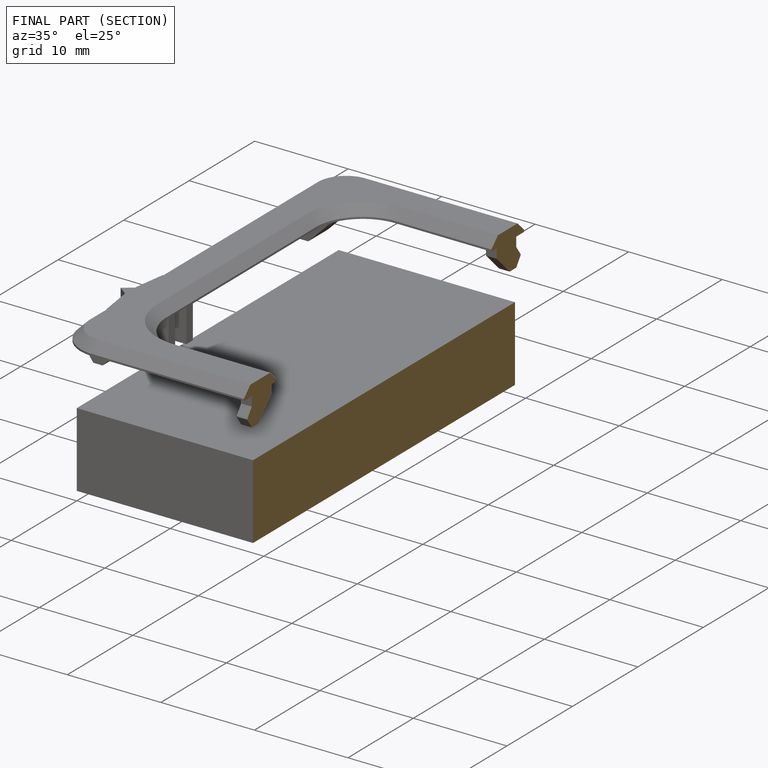
[diagram: finished part — half-section view (interior)]
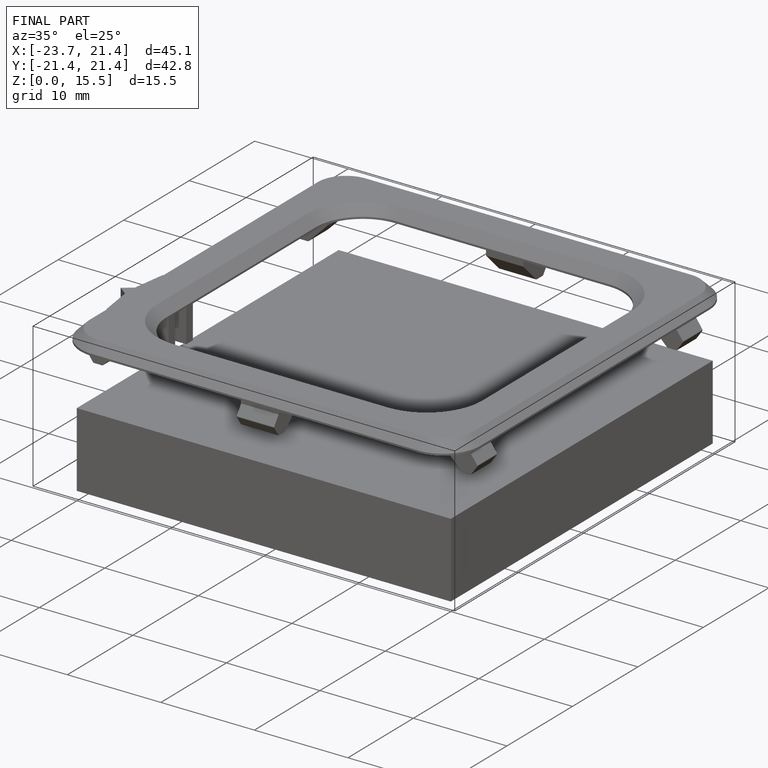
[diagram: finished part — iso view with bounding-box wireframe]
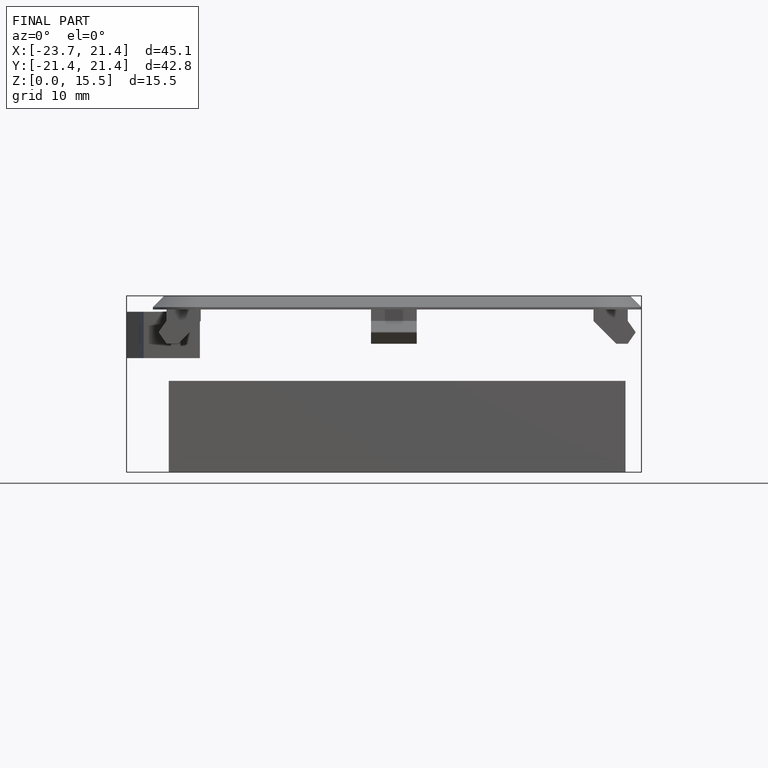
[diagram: finished part — front view with bounding-box wireframe]
